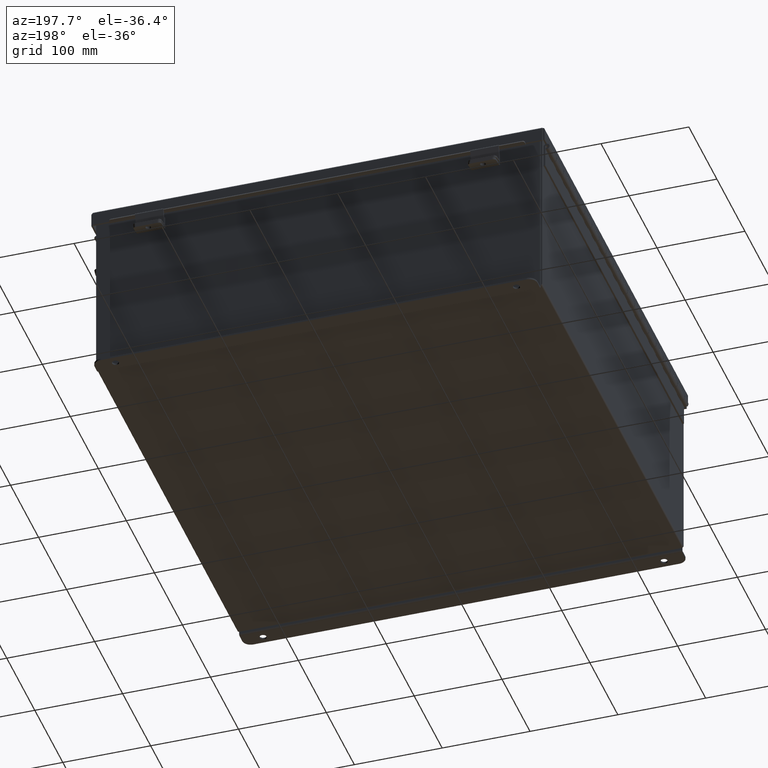
[diagram: clean part render]
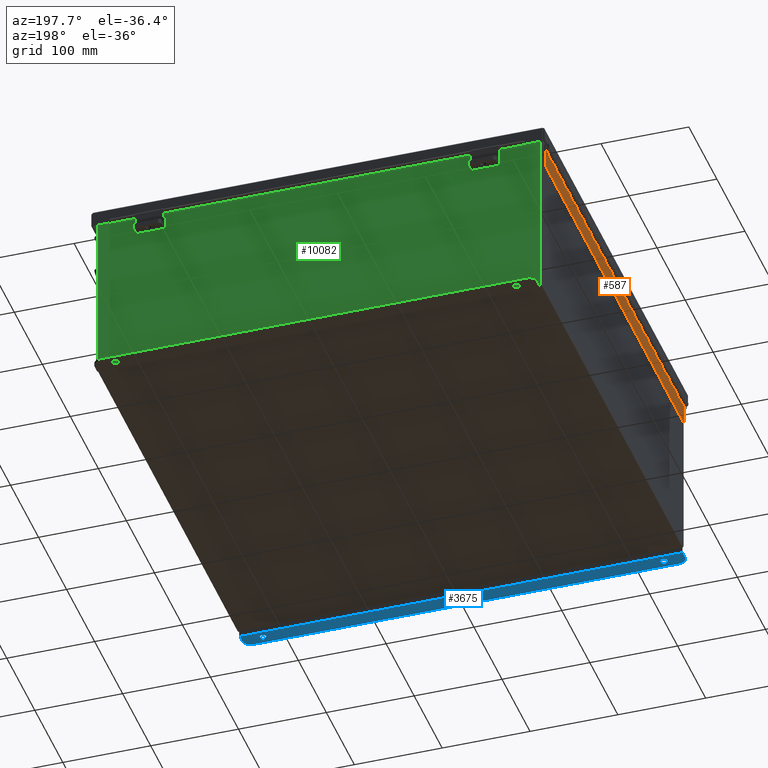
[diagram: same view with three faces highlighted in distinct colors, each labeled with its STEP entity id]
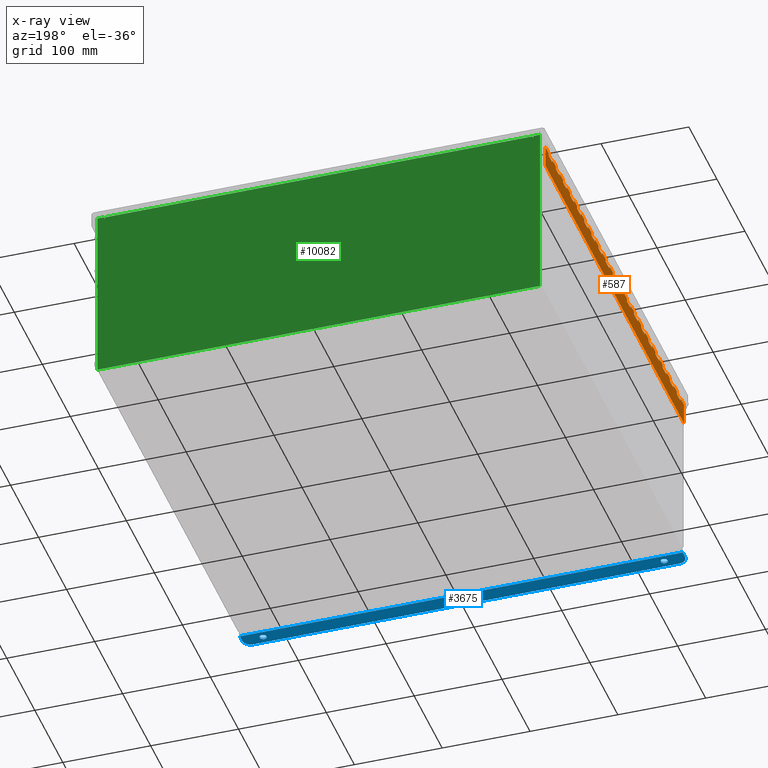
[diagram: x-ray of the same camera — body ghosted, the three highlighted faces saturated]
A machine part, auxiliary view with three faces highlighted in distinct colors.
The next image is the same camera in x-ray (body ghosted, the three faces saturated) — at least one of them is partly hidden behind the body in this view.
Their STEP definitions:

[orange] entity #587 — the highlighted planar face has unit normal (1, -0, 0).
#3 = EDGE_CURVE ( 'NONE', #3331, #10303, #17368, .T. ) ;
#82 = ORIENTED_EDGE ( 'NONE', *, *, #1713, .F. ) ;
#86 = ORIENTED_EDGE ( 'NONE', *, *, #21931, .T. ) ;
#95 = DIRECTION ( 'NONE',  ( 0.0000000000000000000, 1.000000000000000000, 0.0000000000000000000 ) ) ;
#132 = VECTOR ( 'NONE', #17175, 39.37007874015748100 ) ;
#143 = ORIENTED_EDGE ( 'NONE', *, *, #8330, .F. ) ;
#150 = CARTESIAN_POINT ( 'NONE',  ( 0.1365000000000000100, 0.0000000000000000000, -1.707404996040164500E-017 ) ) ;
#183 = DIRECTION ( 'NONE',  ( -1.000000000000000000, 8.005415366049124900E-015, 0.0000000000000000000 ) ) ;
#218 = CARTESIAN_POINT ( 'NONE',  ( 0.1365000000000000100, 18.00000000000000000, -1.707404996040164500E-017 ) ) ;
#243 = VERTEX_POINT ( 'NONE', #17895 ) ;
#279 = LINE ( 'NONE', #507, #18203 ) ;
#286 = ORIENTED_EDGE ( 'NONE', *, *, #19521, .F. ) ;
#398 = EDGE_CURVE ( 'NONE', #16495, #3331, #19500, .T. ) ;
#406 = VERTEX_POINT ( 'NONE', #896 ) ;
#474 = LINE ( 'NONE', #14667, #5112 ) ;
#507 = CARTESIAN_POINT ( 'NONE',  ( 1.521028919549333600E-013, 11.99999999999999800, 0.0000000000000000000 ) ) ;
#515 = VECTOR ( 'NONE', #15664, 39.37007874015748100 ) ;
#517 = ORIENTED_EDGE ( 'NONE', *, *, #10842, .T. ) ;
#522 = VECTOR ( 'NONE', #11803, 39.37007874015748100 ) ;
#531 = LINE ( 'NONE', #2847, #5169 ) ;
#587 = ADVANCED_FACE ( 'NONE', ( #12707 ), #11378, .F. ) ;
#596 = ORIENTED_EDGE ( 'NONE', *, *, #17024, .T. ) ;
#619 = VERTEX_POINT ( 'NONE', #8881 ) ;
#623 = CARTESIAN_POINT ( 'NONE',  ( 0.1365000000000000100, 7.500000000000000000, -1.707404996040164500E-017 ) ) ;
#659 = DIRECTION ( 'NONE',  ( 0.0000000000000000000, 1.000000000000000000, 0.0000000000000000000 ) ) ;
#663 = EDGE_CURVE ( 'NONE', #19815, #20067, #20828, .T. ) ;
#692 = EDGE_CURVE ( 'NONE', #619, #1762, #1853, .T. ) ;
#700 = CARTESIAN_POINT ( 'NONE',  ( 0.2730000000000000200, 7.500000000000000000, 0.0000000000000000000 ) ) ;
#732 = VECTOR ( 'NONE', #4296, 39.37007874015748100 ) ;
#763 = CARTESIAN_POINT ( 'NONE',  ( 1.136500000000000100, 0.0000000000000000000, 0.0000000000000000000 ) ) ;
#810 = VERTEX_POINT ( 'NONE', #15096 ) ;
#857 = DIRECTION ( 'NONE',  ( 0.0000000000000000000, 1.000000000000000000, 0.0000000000000000000 ) ) ;
#887 = EDGE_CURVE ( 'NONE', #16894, #14438, #15964, .T. ) ;
#896 = CARTESIAN_POINT ( 'NONE',  ( 0.1365000000000000100, 10.00000000000000000, -1.707404996040164500E-017 ) ) ;
#901 = VERTEX_POINT ( 'NONE', #218 ) ;
#908 = ORIENTED_EDGE ( 'NONE', *, *, #18367, .F. ) ;
#953 = LINE ( 'NONE', #2384, #6153 ) ;
#984 = ORIENTED_EDGE ( 'NONE', *, *, #16559, .T. ) ;
#1045 = LINE ( 'NONE', #6058, #9733 ) ;
#1064 = LINE ( 'NONE', #13553, #522 ) ;
#1089 = ORIENTED_EDGE ( 'NONE', *, *, #3, .F. ) ;
#1169 = VERTEX_POINT ( 'NONE', #6711 ) ;
#1230 = ORIENTED_EDGE ( 'NONE', *, *, #21354, .F. ) ;
#1251 = VECTOR ( 'NONE', #12525, 39.37007874015748100 ) ;
#1253 = LINE ( 'NONE', #13952, #5350 ) ;
#1266 = EDGE_CURVE ( 'NONE', #11574, #11019, #13261, .T. ) ;
#1312 = CARTESIAN_POINT ( 'NONE',  ( 1.136499999999999800, 19.50000000000000000, 0.0000000000000000000 ) ) ;
#1347 = CARTESIAN_POINT ( 'NONE',  ( 0.2730000000000000200, 8.999999999999996400, 0.0000000000000000000 ) ) ;
#1356 = DIRECTION ( 'NONE',  ( 0.0000000000000000000, 1.000000000000000000, 0.0000000000000000000 ) ) ;
#1359 = CARTESIAN_POINT ( 'NONE',  ( 1.521028919549333600E-013, 16.00000000000000000, 0.0000000000000000000 ) ) ;
#1388 = CARTESIAN_POINT ( 'NONE',  ( 0.1365000000000000100, 11.00000000000000000, -1.707404996040164500E-017 ) ) ;
#1472 = LINE ( 'NONE', #2162, #1251 ) ;
#1491 = ORIENTED_EDGE ( 'NONE', *, *, #11492, .F. ) ;
#1545 = CARTESIAN_POINT ( 'NONE',  ( 0.1365000000000000100, 10.50000000000000000, -1.707404996040164500E-017 ) ) ;
#1546 = ORIENTED_EDGE ( 'NONE', *, *, #8820, .F. ) ;
#1555 = CARTESIAN_POINT ( 'NONE',  ( 0.1365000000000000100, 0.0000000000000000000, -1.707404996040164500E-017 ) ) ;
#1713 = EDGE_CURVE ( 'NONE', #20901, #20762, #9727, .T. ) ;
#1748 = VERTEX_POINT ( 'NONE', #7322 ) ;
#1762 = VERTEX_POINT ( 'NONE', #16447 ) ;
#1823 = ORIENTED_EDGE ( 'NONE', *, *, #18088, .F. ) ;
#1833 = DIRECTION ( 'NONE',  ( -1.000000000000000000, 8.005415366049124900E-015, 0.0000000000000000000 ) ) ;
#1853 = LINE ( 'NONE', #17643, #5968 ) ;
#1861 = VECTOR ( 'NONE', #17272, 39.37007874015748100 ) ;
#1878 = LINE ( 'NONE', #6821, #19787 ) ;
#1933 = VERTEX_POINT ( 'NONE', #9477 ) ;
#2005 = CARTESIAN_POINT ( 'NONE',  ( 0.2730000000000000200, 15.50000000000000000, 0.0000000000000000000 ) ) ;
#2046 = CARTESIAN_POINT ( 'NONE',  ( 0.2730000000000000200, 5.999999999999997300, 0.0000000000000000000 ) ) ;
#2053 = DIRECTION ( 'NONE',  ( -1.000000000000000000, 0.0000000000000000000, 0.0000000000000000000 ) ) ;
#2063 = CARTESIAN_POINT ( 'NONE',  ( 0.2730000000000000200, 18.99999999999999600, 0.0000000000000000000 ) ) ;
#2092 = CARTESIAN_POINT ( 'NONE',  ( 0.2730000000000000200, 4.999999999999998200, 0.0000000000000000000 ) ) ;
#2120 = CARTESIAN_POINT ( 'NONE',  ( 0.2730000000000000200, -10.00000000000000000, 0.0000000000000000000 ) ) ;
#2136 = VECTOR ( 'NONE', #6690, 39.37007874015748100 ) ;
#2162 = CARTESIAN_POINT ( 'NONE',  ( 0.0000000000000000000, 10.50000000000000000, 0.0000000000000000000 ) ) ;
#2175 = VERTEX_POINT ( 'NONE', #15529 ) ;
#2207 = AXIS2_PLACEMENT_3D ( 'NONE', #1312, #12459, #11672 ) ;
#2208 = CARTESIAN_POINT ( 'NONE',  ( 0.2730000000000000200, 6.500000000000000900, 0.0000000000000000000 ) ) ;
#2221 = VERTEX_POINT ( 'NONE', #19020 ) ;
#2229 = DIRECTION ( 'NONE',  ( -1.000000000000000000, -0.0000000000000000000, -0.0000000000000000000 ) ) ;
#2250 = DIRECTION ( 'NONE',  ( -1.000000000000000000, 8.005415366049124900E-015, 0.0000000000000000000 ) ) ;
#2255 = CARTESIAN_POINT ( 'NONE',  ( 0.0000000000000000000, 0.4999999999999996100, 0.0000000000000000000 ) ) ;
#2296 = VERTEX_POINT ( 'NONE', #7316 ) ;
#2323 = VECTOR ( 'NONE', #3843, 39.37007874015748100 ) ;
#2382 = CARTESIAN_POINT ( 'NONE',  ( 0.1365000000000000100, 5.999999999999998200, -1.707404996040164500E-017 ) ) ;
#2384 = CARTESIAN_POINT ( 'NONE',  ( 1.521028919549333600E-013, 8.000000000000000000, 0.0000000000000000000 ) ) ;
#2492 = CARTESIAN_POINT ( 'NONE',  ( 1.521028919549333600E-013, 3.999999999999998700, 0.0000000000000000000 ) ) ;
#2510 = ORIENTED_EDGE ( 'NONE', *, *, #18063, .F. ) ;
#2518 = ORIENTED_EDGE ( 'NONE', *, *, #9601, .F. ) ;
#2524 = EDGE_CURVE ( 'NONE', #4907, #11248, #7279, .T. ) ;
#2586 = VERTEX_POINT ( 'NONE', #18843 ) ;
#2643 = CARTESIAN_POINT ( 'NONE',  ( 0.1365000000000000100, 0.0000000000000000000, -1.707404996040164500E-017 ) ) ;
#2689 = DIRECTION ( 'NONE',  ( 0.0000000000000000000, 1.000000000000000000, 0.0000000000000000000 ) ) ;
#2737 = DIRECTION ( 'NONE',  ( 1.000000000000000000, 0.0000000000000000000, 0.0000000000000000000 ) ) ;
#2793 = EDGE_CURVE ( 'NONE', #10400, #21511, #1253, .T. ) ;
#2817 = LINE ( 'NONE', #9399, #11488 ) ;
#2839 = EDGE_CURVE ( 'NONE', #17767, #21975, #13460, .T. ) ;
#2845 = VECTOR ( 'NONE', #10467, 39.37007874015748100 ) ;
#2847 = CARTESIAN_POINT ( 'NONE',  ( 0.2730000000000000200, -2.999999999999999600, 0.0000000000000000000 ) ) ;
#2877 = EDGE_CURVE ( 'NONE', #6010, #13345, #8320, .T. ) ;
#2894 = CARTESIAN_POINT ( 'NONE',  ( 0.1365000000000000100, 0.0000000000000000000, -1.707404996040164500E-017 ) ) ;
#2909 = LINE ( 'NONE', #11934, #3142 ) ;
#2910 = CARTESIAN_POINT ( 'NONE',  ( 0.2730000000000000200, 12.50000000000000000, 0.0000000000000000000 ) ) ;
#2966 = CARTESIAN_POINT ( 'NONE',  ( 1.521028919549333600E-013, 5.000000000000000000, 0.0000000000000000000 ) ) ;
#3041 = VERTEX_POINT ( 'NONE', #5329 ) ;
#3049 = CARTESIAN_POINT ( 'NONE',  ( 0.2730000000000000200, 10.99999999999999800, 0.0000000000000000000 ) ) ;
#3142 = VECTOR ( 'NONE', #22292, 39.37007874015748100 ) ;
#3167 = EDGE_CURVE ( 'NONE', #13046, #4124, #21292, .T. ) ;
#3196 = EDGE_CURVE ( 'NONE', #2586, #19124, #12070, .T. ) ;
#3299 = VECTOR ( 'NONE', #18716, 39.37007874015748100 ) ;
#3331 = VERTEX_POINT ( 'NONE', #8279 ) ;
#3409 = VECTOR ( 'NONE', #10387, 39.37007874015748100 ) ;
#3457 = DIRECTION ( 'NONE',  ( 0.0000000000000000000, 1.000000000000000000, 0.0000000000000000000 ) ) ;
#3477 = CARTESIAN_POINT ( 'NONE',  ( 0.1365000000000000100, 0.4999999999999996100, -1.707404996040164500E-017 ) ) ;
#3480 = CARTESIAN_POINT ( 'NONE',  ( 1.521028919549333600E-013, 14.00000000000000000, 0.0000000000000000000 ) ) ;
#3496 = EDGE_CURVE ( 'NONE', #2221, #7408, #20444, .T. ) ;
#3517 = CARTESIAN_POINT ( 'NONE',  ( 0.2730000000000000200, -13.00000000000000000, 0.0000000000000000000 ) ) ;
#3578 = DIRECTION ( 'NONE',  ( -1.000000000000000000, 0.0000000000000000000, 0.0000000000000000000 ) ) ;
#3590 = EDGE_CURVE ( 'NONE', #5343, #20901, #3941, .T. ) ;
#3652 = DIRECTION ( 'NONE',  ( -1.000000000000000000, 8.005415366049124900E-015, 0.0000000000000000000 ) ) ;
#3659 = ORIENTED_EDGE ( 'NONE', *, *, #18764, .F. ) ;
#3694 = LINE ( 'NONE', #19464, #12356 ) ;
#3704 = VECTOR ( 'NONE', #7685, 39.37007874015748100 ) ;
#3726 = CARTESIAN_POINT ( 'NONE',  ( 0.1365000000000000100, 3.499999999999999100, -1.707404996040164500E-017 ) ) ;
#3732 = CARTESIAN_POINT ( 'NONE',  ( 0.0000000000000000000, 17.50000000000000000, 0.0000000000000000000 ) ) ;
#3736 = CARTESIAN_POINT ( 'NONE',  ( 0.2730000000000000200, 11.50000000000000200, 0.0000000000000000000 ) ) ;
#3810 = VERTEX_POINT ( 'NONE', #1347 ) ;
#3843 = DIRECTION ( 'NONE',  ( -1.000000000000000000, 0.0000000000000000000, 0.0000000000000000000 ) ) ;
#3880 = LINE ( 'NONE', #4843, #17165 ) ;
#3882 = ORIENTED_EDGE ( 'NONE', *, *, #17755, .F. ) ;
#3885 = VECTOR ( 'NONE', #12531, 39.37007874015748100 ) ;
#3941 = LINE ( 'NONE', #2966, #2845 ) ;
#4027 = DIRECTION ( 'NONE',  ( 0.0000000000000000000, 1.000000000000000000, 0.0000000000000000000 ) ) ;
#4091 = DIRECTION ( 'NONE',  ( 0.0000000000000000000, 1.000000000000000000, 0.0000000000000000000 ) ) ;
#4116 = DIRECTION ( 'NONE',  ( 0.0000000000000000000, 1.000000000000000000, 0.0000000000000000000 ) ) ;
#4124 = VERTEX_POINT ( 'NONE', #8162 ) ;
#4194 = CARTESIAN_POINT ( 'NONE',  ( 0.1365000000000000100, 0.0000000000000000000, -1.707404996040164500E-017 ) ) ;
#4240 = LINE ( 'NONE', #21187, #21562 ) ;
#4268 = VECTOR ( 'NONE', #857, 39.37007874015748100 ) ;
#4279 = DIRECTION ( 'NONE',  ( -7.004738445292983000E-018, 1.000000000000000000, 0.0000000000000000000 ) ) ;
#4296 = DIRECTION ( 'NONE',  ( 0.0000000000000000000, 1.000000000000000000, 0.0000000000000000000 ) ) ;
#4407 = VERTEX_POINT ( 'NONE', #10841 ) ;
#4438 = VERTEX_POINT ( 'NONE', #763 ) ;
#4493 = LINE ( 'NONE', #20057, #13163 ) ;
#4566 = EDGE_CURVE ( 'NONE', #13015, #13977, #15544, .T. ) ;
#4580 = CARTESIAN_POINT ( 'NONE',  ( 0.1365000000000000100, 0.0000000000000000000, -1.707404996040164500E-017 ) ) ;
#4588 = LINE ( 'NONE', #13551, #17340 ) ;
#4645 = DIRECTION ( 'NONE',  ( 0.0000000000000000000, 1.000000000000000000, 0.0000000000000000000 ) ) ;
#4731 = DIRECTION ( 'NONE',  ( 0.0000000000000000000, 1.000000000000000000, 0.0000000000000000000 ) ) ;
#4767 = VERTEX_POINT ( 'NONE', #2046 ) ;
#4799 = CARTESIAN_POINT ( 'NONE',  ( 0.1365000000000000100, 3.999999999999998200, -1.707404996040164500E-017 ) ) ;
#4843 = CARTESIAN_POINT ( 'NONE',  ( 0.2730000000000000200, -7.000000000000000000, 0.0000000000000000000 ) ) ;
#4853 = VECTOR ( 'NONE', #19207, 39.37007874015748100 ) ;
#4907 = VERTEX_POINT ( 'NONE', #14078 ) ;
#4982 = CARTESIAN_POINT ( 'NONE',  ( 0.2730000000000000200, -5.000000000000000000, 0.0000000000000000000 ) ) ;
#4983 = ORIENTED_EDGE ( 'NONE', *, *, #8149, .F. ) ;
#5112 = VECTOR ( 'NONE', #4279, 39.37007874015748100 ) ;
#5130 = VECTOR ( 'NONE', #7904, 39.37007874015748100 ) ;
#5169 = VECTOR ( 'NONE', #9756, 39.37007874015748100 ) ;
#5179 = VERTEX_POINT ( 'NONE', #10289 ) ;
#5215 = ORIENTED_EDGE ( 'NONE', *, *, #2524, .F. ) ;
#5254 = VERTEX_POINT ( 'NONE', #8479 ) ;
#5263 = CARTESIAN_POINT ( 'NONE',  ( 1.521028919549333600E-013, 10.00000000000000000, 0.0000000000000000000 ) ) ;
#5314 = DIRECTION ( 'NONE',  ( 0.0000000000000000000, 1.000000000000000000, 0.0000000000000000000 ) ) ;
#5325 = ORIENTED_EDGE ( 'NONE', *, *, #21952, .T. ) ;
#5329 = CARTESIAN_POINT ( 'NONE',  ( 0.1364999999999999000, 0.0000000000000000000, 0.0000000000000000000 ) ) ;
#5342 = VERTEX_POINT ( 'NONE', #2005 ) ;
#5343 = VERTEX_POINT ( 'NONE', #2092 ) ;
#5344 = VECTOR ( 'NONE', #5453, 39.37007874015748100 ) ;
#5348 = DIRECTION ( 'NONE',  ( 0.0000000000000000000, 1.000000000000000000, 0.0000000000000000000 ) ) ;
#5350 = VECTOR ( 'NONE', #14797, 39.37007874015748100 ) ;
#5383 = CARTESIAN_POINT ( 'NONE',  ( 0.1365000000000000100, 0.0000000000000000000, -1.707404996040164500E-017 ) ) ;
#5448 = CARTESIAN_POINT ( 'NONE',  ( 0.1365000000000000100, 11.50000000000000200, -1.707404996040164500E-017 ) ) ;
#5453 = DIRECTION ( 'NONE',  ( -1.000000000000000000, 0.0000000000000000000, 0.0000000000000000000 ) ) ;
#5522 = EDGE_CURVE ( 'NONE', #11526, #810, #3880, .T. ) ;
#5595 = CARTESIAN_POINT ( 'NONE',  ( 0.1365000000000000100, 14.49999999999999800, -1.707404996040164500E-017 ) ) ;
#5596 = LINE ( 'NONE', #8901, #10718 ) ;
#5645 = LINE ( 'NONE', #2120, #9666 ) ;
#5674 = VECTOR ( 'NONE', #4116, 39.37007874015748100 ) ;
#5715 = CARTESIAN_POINT ( 'NONE',  ( 0.1365000000000000100, 9.500000000000000000, -1.707404996040164500E-017 ) ) ;
#5769 = VERTEX_POINT ( 'NONE', #9395 ) ;
#5771 = DIRECTION ( 'NONE',  ( 0.0000000000000000000, 1.000000000000000000, 0.0000000000000000000 ) ) ;
#5905 = LINE ( 'NONE', #17713, #15108 ) ;
#5935 = LINE ( 'NONE', #14678, #732 ) ;
#5968 = VECTOR ( 'NONE', #20968, 39.37007874015748100 ) ;
#6005 = VECTOR ( 'NONE', #2737, 39.37007874015748100 ) ;
#6010 = VERTEX_POINT ( 'NONE', #20327 ) ;
#6029 = ORIENTED_EDGE ( 'NONE', *, *, #3496, .F. ) ;
#6035 = CARTESIAN_POINT ( 'NONE',  ( 0.2730000000000000200, 0.0000000000000000000, 0.0000000000000000000 ) ) ;
#6058 = CARTESIAN_POINT ( 'NONE',  ( 0.1365000000000000100, 0.0000000000000000000, -1.707404996040164500E-017 ) ) ;
#6061 = CARTESIAN_POINT ( 'NONE',  ( 0.1365000000000000100, 7.999999999999999100, -1.707404996040164500E-017 ) ) ;
#6124 = VERTEX_POINT ( 'NONE', #700 ) ;
#6153 = VECTOR ( 'NONE', #14520, 39.37007874015748100 ) ;
#6245 = EDGE_CURVE ( 'NONE', #13015, #16857, #12781, .T. ) ;
#6268 = CARTESIAN_POINT ( 'NONE',  ( 1.521028919549333600E-013, 19.00000000000000000, 0.0000000000000000000 ) ) ;
#6402 = CARTESIAN_POINT ( 'NONE',  ( 0.1365000000000000100, 0.0000000000000000000, -1.707404996040164500E-017 ) ) ;
#6415 = LINE ( 'NONE', #16851, #14531 ) ;
#6457 = VECTOR ( 'NONE', #1356, 39.37007874015748100 ) ;
#6514 = EDGE_CURVE ( 'NONE', #243, #5254, #7927, .T. ) ;
#6592 = DIRECTION ( 'NONE',  ( 0.0000000000000000000, 1.000000000000000000, 0.0000000000000000000 ) ) ;
#6606 = CARTESIAN_POINT ( 'NONE',  ( 0.2730000000000000200, 13.99999999999999600, 0.0000000000000000000 ) ) ;
#6616 = CARTESIAN_POINT ( 'NONE',  ( 0.0000000000000000000, 1.500000000000000900, 0.0000000000000000000 ) ) ;
#6690 = DIRECTION ( 'NONE',  ( -1.000000000000000000, 8.005415366049124900E-015, 0.0000000000000000000 ) ) ;
#6711 = CARTESIAN_POINT ( 'NONE',  ( 0.2730000000000000200, 7.999999999999997300, 0.0000000000000000000 ) ) ;
#6716 = CARTESIAN_POINT ( 'NONE',  ( 0.0000000000000000000, 15.50000000000000000, 0.0000000000000000000 ) ) ;
#6734 = VERTEX_POINT ( 'NONE', #3477 ) ;
#6758 = LINE ( 'NONE', #7570, #10801 ) ;
#6762 = CARTESIAN_POINT ( 'NONE',  ( 0.2730000000000000200, -8.000000000000000000, 0.0000000000000000000 ) ) ;
#6806 = CARTESIAN_POINT ( 'NONE',  ( 0.2730000000000000200, 3.499999999999999100, 0.0000000000000000000 ) ) ;
#6808 = VECTOR ( 'NONE', #16999, 39.37007874015748100 ) ;
#6818 = DIRECTION ( 'NONE',  ( -1.000000000000000000, 8.005415366049124900E-015, 0.0000000000000000000 ) ) ;
#6821 = CARTESIAN_POINT ( 'NONE',  ( 0.0000000000000000000, 7.500000000000000000, 0.0000000000000000000 ) ) ;
#6900 = ORIENTED_EDGE ( 'NONE', *, *, #3590, .F. ) ;
#6933 = ORIENTED_EDGE ( 'NONE', *, *, #18035, .F. ) ;
#6958 = CARTESIAN_POINT ( 'NONE',  ( 0.2730000000000000200, -9.000000000000000000, 0.0000000000000000000 ) ) ;
#7007 = DIRECTION ( 'NONE',  ( -1.000000000000000000, 8.005415366049124900E-015, 0.0000000000000000000 ) ) ;
#7011 = ORIENTED_EDGE ( 'NONE', *, *, #12928, .F. ) ;
#7018 = CARTESIAN_POINT ( 'NONE',  ( 0.0000000000000000000, 5.500000000000000000, 0.0000000000000000000 ) ) ;
#7112 = ORIENTED_EDGE ( 'NONE', *, *, #8981, .T. ) ;
#7279 = LINE ( 'NONE', #6762, #11849 ) ;
#7316 = CARTESIAN_POINT ( 'NONE',  ( 0.2730000000000000200, 8.500000000000000000, 0.0000000000000000000 ) ) ;
#7322 = CARTESIAN_POINT ( 'NONE',  ( 0.2730000000000000200, 15.99999999999999800, 0.0000000000000000000 ) ) ;
#7336 = CARTESIAN_POINT ( 'NONE',  ( 0.2730000000000000200, 9.999999999999996400, 0.0000000000000000000 ) ) ;
#7337 = LINE ( 'NONE', #19674, #20541 ) ;
#7353 = DIRECTION ( 'NONE',  ( -1.000000000000000000, 0.0000000000000000000, 0.0000000000000000000 ) ) ;
#7359 = CARTESIAN_POINT ( 'NONE',  ( 0.1365000000000000100, 16.50000000000000000, -1.707404996040164500E-017 ) ) ;
#7408 = VERTEX_POINT ( 'NONE', #10478 ) ;
#7507 = VECTOR ( 'NONE', #1833, 39.37007874015748100 ) ;
#7570 = CARTESIAN_POINT ( 'NONE',  ( 1.521028919549333600E-013, 18.00000000000000000, 0.0000000000000000000 ) ) ;
#7584 = LINE ( 'NONE', #4982, #20815 ) ;
#7628 = CARTESIAN_POINT ( 'NONE',  ( 0.2730000000000000200, 2.999999999999997300, 0.0000000000000000000 ) ) ;
#7638 = VERTEX_POINT ( 'NONE', #1388 ) ;
#7685 = DIRECTION ( 'NONE',  ( 0.0000000000000000000, 1.000000000000000000, 0.0000000000000000000 ) ) ;
#7739 = EDGE_CURVE ( 'NONE', #2296, #20067, #1064, .T. ) ;
#7868 = VECTOR ( 'NONE', #11213, 39.37007874015748100 ) ;
#7904 = DIRECTION ( 'NONE',  ( 0.0000000000000000000, 1.000000000000000000, 0.0000000000000000000 ) ) ;
#7927 = LINE ( 'NONE', #17439, #16582 ) ;
#7958 = DIRECTION ( 'NONE',  ( -1.000000000000000000, 8.005415366049124900E-015, 0.0000000000000000000 ) ) ;
#7969 = VECTOR ( 'NONE', #14380, 39.37007874015748100 ) ;
#7994 = DIRECTION ( 'NONE',  ( -1.000000000000000000, 8.005415366049124900E-015, 0.0000000000000000000 ) ) ;
#8065 = EDGE_CURVE ( 'NONE', #19290, #8916, #7337, .T. ) ;
#8149 = EDGE_CURVE ( 'NONE', #5254, #13563, #1045, .T. ) ;
#8162 = CARTESIAN_POINT ( 'NONE',  ( 0.1365000000000000100, 4.500000000000000900, -1.707404996040164500E-017 ) ) ;
#8189 = CARTESIAN_POINT ( 'NONE',  ( 0.1365000000000000100, 18.50000000000000000, -1.707404996040164500E-017 ) ) ;
#8196 = VECTOR ( 'NONE', #14139, 39.37007874015748100 ) ;
#8228 = CARTESIAN_POINT ( 'NONE',  ( 0.2730000000000000200, 1.500000000000000900, 0.0000000000000000000 ) ) ;
#8269 = CARTESIAN_POINT ( 'NONE',  ( 0.2730000000000000200, -14.00000000000000000, 0.0000000000000000000 ) ) ;
#8279 = CARTESIAN_POINT ( 'NONE',  ( 0.1365000000000000100, 15.00000000000000000, -1.707404996040164500E-017 ) ) ;
#8291 = VECTOR ( 'NONE', #11912, 39.37007874015748100 ) ;
#8320 = LINE ( 'NONE', #22194, #3704 ) ;
#8330 = EDGE_CURVE ( 'NONE', #4767, #17767, #16231, .T. ) ;
#8340 = ORIENTED_EDGE ( 'NONE', *, *, #13921, .F. ) ;
#8347 = VECTOR ( 'NONE', #2689, 39.37007874015748100 ) ;
#8446 = DIRECTION ( 'NONE',  ( -1.000000000000000000, 0.0000000000000000000, 0.0000000000000000000 ) ) ;
#8479 = CARTESIAN_POINT ( 'NONE',  ( 0.1365000000000000100, 13.00000000000000000, -1.707404996040164500E-017 ) ) ;
#8588 = VERTEX_POINT ( 'NONE', #9136 ) ;
#8634 = ORIENTED_EDGE ( 'NONE', *, *, #18694, .T. ) ;
#8671 = DIRECTION ( 'NONE',  ( 0.0000000000000000000, 1.000000000000000000, 0.0000000000000000000 ) ) ;
#8681 = DIRECTION ( 'NONE',  ( -1.000000000000000000, 0.0000000000000000000, 0.0000000000000000000 ) ) ;
#8716 = CARTESIAN_POINT ( 'NONE',  ( 0.1365000000000000100, 0.0000000000000000000, -1.707404996040164500E-017 ) ) ;
#8728 = VECTOR ( 'NONE', #5314, 39.37007874015748100 ) ;
#8809 = DIRECTION ( 'NONE',  ( -1.000000000000000000, 8.005415366049124900E-015, 0.0000000000000000000 ) ) ;
#8820 = EDGE_CURVE ( 'NONE', #13977, #11535, #17869, .T. ) ;
#8836 = CARTESIAN_POINT ( 'NONE',  ( 1.521028919549333600E-013, 17.00000000000000000, 0.0000000000000000000 ) ) ;
#8864 = VECTOR ( 'NONE', #4091, 39.37007874015748100 ) ;
#8881 = CARTESIAN_POINT ( 'NONE',  ( 0.2730000000000000200, 2.500000000000000000, 0.0000000000000000000 ) ) ;
#8893 = LINE ( 'NONE', #9517, #4268 ) ;
#8895 = DIRECTION ( 'NONE',  ( 0.0000000000000000000, 1.000000000000000000, 0.0000000000000000000 ) ) ;
#8901 = CARTESIAN_POINT ( 'NONE',  ( 1.521028919549333600E-013, 7.000000000000000900, 0.0000000000000000000 ) ) ;
#8904 = LINE ( 'NONE', #6716, #22151 ) ;
#8909 = VECTOR ( 'NONE', #2229, 39.37007874015748100 ) ;
#8916 = VERTEX_POINT ( 'NONE', #9955 ) ;
#8981 = EDGE_CURVE ( 'NONE', #5342, #10303, #8904, .T. ) ;
#9073 = EDGE_CURVE ( 'NONE', #18047, #8588, #17029, .T. ) ;
#9136 = CARTESIAN_POINT ( 'NONE',  ( 0.1365000000000000100, 2.000000000000000000, -1.707404996040164500E-017 ) ) ;
#9145 = CARTESIAN_POINT ( 'NONE',  ( 0.1365000000000000100, 6.500000000000000900, -1.707404996040164500E-017 ) ) ;
#9207 = DIRECTION ( 'NONE',  ( -1.000000000000000000, 8.005415366049124900E-015, 0.0000000000000000000 ) ) ;
#9276 = LINE ( 'NONE', #8716, #8728 ) ;
#9299 = ORIENTED_EDGE ( 'NONE', *, *, #12716, .F. ) ;
#9325 = EDGE_CURVE ( 'NONE', #13046, #5343, #11039, .T. ) ;
#9395 = CARTESIAN_POINT ( 'NONE',  ( 0.2730000000000000200, 13.50000000000000000, 0.0000000000000000000 ) ) ;
#9399 = CARTESIAN_POINT ( 'NONE',  ( 0.2730000000000000200, -11.99999999999999800, 0.0000000000000000000 ) ) ;
#9477 = CARTESIAN_POINT ( 'NONE',  ( 0.2730000000000000200, 0.4999999999999996100, 0.0000000000000000000 ) ) ;
#9513 = DIRECTION ( 'NONE',  ( 0.0000000000000000000, 1.000000000000000000, 0.0000000000000000000 ) ) ;
#9517 = CARTESIAN_POINT ( 'NONE',  ( 0.2730000000000000200, -18.00000000000000000, 0.0000000000000000000 ) ) ;
#9601 = EDGE_CURVE ( 'NONE', #2296, #3810, #5645, .T. ) ;
#9630 = CARTESIAN_POINT ( 'NONE',  ( 0.1365000000000000100, 19.50000000000000000, -1.707404996040164500E-017 ) ) ;
#9666 = VECTOR ( 'NONE', #12482, 39.37007874015748100 ) ;
#9725 = VECTOR ( 'NONE', #2053, 39.37007874015748100 ) ;
#9727 = LINE ( 'NONE', #150, #5130 ) ;
#9733 = VECTOR ( 'NONE', #9513, 39.37007874015748100 ) ;
#9756 = DIRECTION ( 'NONE',  ( 0.0000000000000000000, 1.000000000000000000, 0.0000000000000000000 ) ) ;
#9761 = CARTESIAN_POINT ( 'NONE',  ( 0.1365000000000000100, 17.50000000000000000, -1.707404996040164500E-017 ) ) ;
#9768 = ORIENTED_EDGE ( 'NONE', *, *, #11231, .F. ) ;
#9843 = DIRECTION ( 'NONE',  ( 0.0000000000000000000, 1.000000000000000000, 0.0000000000000000000 ) ) ;
#9895 = VERTEX_POINT ( 'NONE', #9761 ) ;
#9955 = CARTESIAN_POINT ( 'NONE',  ( 0.2730000000000000200, 16.99999999999999600, 0.0000000000000000000 ) ) ;
#10005 = ORIENTED_EDGE ( 'NONE', *, *, #2793, .F. ) ;
#10040 = ORIENTED_EDGE ( 'NONE', *, *, #692, .T. ) ;
#10069 = EDGE_CURVE ( 'NONE', #19290, #13345, #2909, .T. ) ;
#10155 = VERTEX_POINT ( 'NONE', #12073 ) ;
#10164 = DIRECTION ( 'NONE',  ( 0.0000000000000000000, 1.000000000000000000, 0.0000000000000000000 ) ) ;
#10168 = CARTESIAN_POINT ( 'NONE',  ( 0.0000000000000000000, 6.500000000000000900, 0.0000000000000000000 ) ) ;
#10237 = ORIENTED_EDGE ( 'NONE', *, *, #4566, .F. ) ;
#10289 = CARTESIAN_POINT ( 'NONE',  ( 0.1365000000000000100, 17.00000000000000000, -1.707404996040164500E-017 ) ) ;
#10290 = VECTOR ( 'NONE', #9207, 39.37007874015748100 ) ;
#10303 = VERTEX_POINT ( 'NONE', #10730 ) ;
#10387 = DIRECTION ( 'NONE',  ( -1.000000000000000000, 0.0000000000000000000, 0.0000000000000000000 ) ) ;
#10400 = VERTEX_POINT ( 'NONE', #21396 ) ;
#10467 = DIRECTION ( 'NONE',  ( -1.000000000000000000, 8.005415366049124900E-015, 0.0000000000000000000 ) ) ;
#10478 = CARTESIAN_POINT ( 'NONE',  ( 0.1365000000000000100, 12.50000000000000000, -1.707404996040164500E-017 ) ) ;
#10557 = CARTESIAN_POINT ( 'NONE',  ( 1.521028919549333600E-013, 2.000000000000000400, 0.0000000000000000000 ) ) ;
#10564 = LINE ( 'NONE', #19073, #1861 ) ;
#10718 = VECTOR ( 'NONE', #3652, 39.37007874015748100 ) ;
#10730 = CARTESIAN_POINT ( 'NONE',  ( 0.1365000000000000100, 15.50000000000000000, -1.707404996040164500E-017 ) ) ;
#10801 = VECTOR ( 'NONE', #16172, 39.37007874015748100 ) ;
#10841 = CARTESIAN_POINT ( 'NONE',  ( 0.1365000000000000100, 8.999999999999998200, -1.707404996040164500E-017 ) ) ;
#10842 = EDGE_CURVE ( 'NONE', #18387, #18479, #13451, .T. ) ;
#10961 = ORIENTED_EDGE ( 'NONE', *, *, #9325, .F. ) ;
#11002 = EDGE_CURVE ( 'NONE', #1169, #19815, #953, .T. ) ;
#11019 = VERTEX_POINT ( 'NONE', #623 ) ;
#11039 = LINE ( 'NONE', #8269, #6457 ) ;
#11157 = VECTOR ( 'NONE', #14398, 39.37007874015748100 ) ;
#11184 = ORIENTED_EDGE ( 'NONE', *, *, #17599, .F. ) ;
#11213 = DIRECTION ( 'NONE',  ( -1.000000000000000000, 8.005415366049124900E-015, 0.0000000000000000000 ) ) ;
#11231 = EDGE_CURVE ( 'NONE', #7638, #20214, #6415, .T. ) ;
#11248 = VERTEX_POINT ( 'NONE', #3049 ) ;
#11328 = EDGE_CURVE ( 'NONE', #14122, #2586, #22092, .T. ) ;
#11342 = CARTESIAN_POINT ( 'NONE',  ( 0.2730000000000000200, -1.000000000000000000, 0.0000000000000000000 ) ) ;
#11378 = PLANE ( 'NONE',  #2207 ) ;
#11449 = LINE ( 'NONE', #17469, #15516 ) ;
#11451 = EDGE_CURVE ( 'NONE', #22313, #19124, #19922, .T. ) ;
#11488 = VECTOR ( 'NONE', #659, 39.37007874015748100 ) ;
#11492 = EDGE_CURVE ( 'NONE', #10155, #11574, #5596, .T. ) ;
#11526 = VERTEX_POINT ( 'NONE', #3736 ) ;
#11535 = VERTEX_POINT ( 'NONE', #14193 ) ;
#11574 = VERTEX_POINT ( 'NONE', #19403 ) ;
#11672 = DIRECTION ( 'NONE',  ( -1.000000000000000000, 0.0000000000000000000, -0.0000000000000000000 ) ) ;
#11803 = DIRECTION ( 'NONE',  ( -1.000000000000000000, 0.0000000000000000000, 0.0000000000000000000 ) ) ;
#11812 = ORIENTED_EDGE ( 'NONE', *, *, #663, .F. ) ;
#11830 = EDGE_CURVE ( 'NONE', #1748, #6010, #14276, .T. ) ;
#11849 = VECTOR ( 'NONE', #10164, 39.37007874015748100 ) ;
#11912 = DIRECTION ( 'NONE',  ( -1.000000000000000000, 8.005415366049124900E-015, 0.0000000000000000000 ) ) ;
#11917 = LINE ( 'NONE', #20369, #6808 ) ;
#11930 = CARTESIAN_POINT ( 'NONE',  ( 0.1365000000000000100, 8.500000000000000000, -1.707404996040164500E-017 ) ) ;
#11931 = CARTESIAN_POINT ( 'NONE',  ( 1.521028919549333600E-013, 5.999999999999999100, 0.0000000000000000000 ) ) ;
#11934 = CARTESIAN_POINT ( 'NONE',  ( 0.0000000000000000000, 16.50000000000000000, 0.0000000000000000000 ) ) ;
#11976 = EDGE_CURVE ( 'NONE', #18113, #20762, #20735, .T. ) ;
#12041 = ORIENTED_EDGE ( 'NONE', *, *, #22351, .F. ) ;
#12070 = LINE ( 'NONE', #15587, #15611 ) ;
#12073 = CARTESIAN_POINT ( 'NONE',  ( 0.2730000000000000200, 6.999999999999998200, 0.0000000000000000000 ) ) ;
#12163 = LINE ( 'NONE', #4580, #21386 ) ;
#12174 = VERTEX_POINT ( 'NONE', #16053 ) ;
#12276 = VERTEX_POINT ( 'NONE', #7336 ) ;
#12296 = VERTEX_POINT ( 'NONE', #12571 ) ;
#12308 = LINE ( 'NONE', #22402, #20415 ) ;
#12310 = VERTEX_POINT ( 'NONE', #2208 ) ;
#12322 = ORIENTED_EDGE ( 'NONE', *, *, #1266, .F. ) ;
#12356 = VECTOR ( 'NONE', #14328, 39.37007874015748100 ) ;
#12370 = ORIENTED_EDGE ( 'NONE', *, *, #6245, .T. ) ;
#12459 = DIRECTION ( 'NONE',  ( 0.0000000000000000000, 0.0000000000000000000, -1.000000000000000000 ) ) ;
#12461 = CARTESIAN_POINT ( 'NONE',  ( 0.1365000000000000100, 0.0000000000000000000, -1.707404996040164500E-017 ) ) ;
#12482 = DIRECTION ( 'NONE',  ( 0.0000000000000000000, 1.000000000000000000, 0.0000000000000000000 ) ) ;
#12525 = DIRECTION ( 'NONE',  ( -1.000000000000000000, 0.0000000000000000000, 0.0000000000000000000 ) ) ;
#12526 = VERTEX_POINT ( 'NONE', #4799 ) ;
#12531 = DIRECTION ( 'NONE',  ( 0.0000000000000000000, 1.000000000000000000, 0.0000000000000000000 ) ) ;
#12571 = CARTESIAN_POINT ( 'NONE',  ( 0.2730000000000000200, 3.999999999999996900, 0.0000000000000000000 ) ) ;
#12594 = ORIENTED_EDGE ( 'NONE', *, *, #21525, .F. ) ;
#12612 = LINE ( 'NONE', #6958, #21289 ) ;
#12628 = DIRECTION ( 'NONE',  ( 0.0000000000000000000, 1.000000000000000000, 0.0000000000000000000 ) ) ;
#12707 = FACE_OUTER_BOUND ( 'NONE', #19388, .T. ) ;
#12716 = EDGE_CURVE ( 'NONE', #3810, #4407, #12308, .T. ) ;
#12727 = VECTOR ( 'NONE', #4027, 39.37007874015748100 ) ;
#12762 = ORIENTED_EDGE ( 'NONE', *, *, #14693, .T. ) ;
#12781 = LINE ( 'NONE', #14211, #8196 ) ;
#12857 = ORIENTED_EDGE ( 'NONE', *, *, #15417, .F. ) ;
#12928 = EDGE_CURVE ( 'NONE', #12310, #10155, #2817, .T. ) ;
#12943 = VECTOR ( 'NONE', #8809, 39.37007874015748100 ) ;
#12991 = LINE ( 'NONE', #2492, #7868 ) ;
#13009 = CARTESIAN_POINT ( 'NONE',  ( 0.1365000000000000100, 1.500000000000000900, -1.707404996040164500E-017 ) ) ;
#13015 = VERTEX_POINT ( 'NONE', #19981 ) ;
#13018 = ORIENTED_EDGE ( 'NONE', *, *, #20721, .T. ) ;
#13046 = VERTEX_POINT ( 'NONE', #20063 ) ;
#13092 = LINE ( 'NONE', #16094, #7969 ) ;
#13096 = ORIENTED_EDGE ( 'NONE', *, *, #11976, .T. ) ;
#13163 = VECTOR ( 'NONE', #7958, 39.37007874015748100 ) ;
#13261 = LINE ( 'NONE', #5383, #515 ) ;
#13345 = VERTEX_POINT ( 'NONE', #7359 ) ;
#13347 = EDGE_CURVE ( 'NONE', #4407, #14689, #22294, .T. ) ;
#13405 = EDGE_CURVE ( 'NONE', #406, #20066, #13092, .T. ) ;
#13451 = LINE ( 'NONE', #15796, #5344 ) ;
#13460 = LINE ( 'NONE', #2643, #8864 ) ;
#13504 = VECTOR ( 'NONE', #183, 39.37007874015748100 ) ;
#13551 = CARTESIAN_POINT ( 'NONE',  ( 1.521028919549333600E-013, 0.9999999999999992200, 0.0000000000000000000 ) ) ;
#13553 = CARTESIAN_POINT ( 'NONE',  ( 0.0000000000000000000, 8.500000000000000000, 0.0000000000000000000 ) ) ;
#13559 = VECTOR ( 'NONE', #4645, 39.37007874015748100 ) ;
#13563 = VERTEX_POINT ( 'NONE', #14732 ) ;
#13635 = CARTESIAN_POINT ( 'NONE',  ( 0.1365000000000000100, 14.00000000000000000, -1.707404996040164500E-017 ) ) ;
#13656 = VERTEX_POINT ( 'NONE', #2910 ) ;
#13732 = CARTESIAN_POINT ( 'NONE',  ( 0.1365000000000000100, 5.500000000000000000, -1.707404996040164500E-017 ) ) ;
#13765 = DIRECTION ( 'NONE',  ( -1.000000000000000000, 0.0000000000000000000, 0.0000000000000000000 ) ) ;
#13921 = EDGE_CURVE ( 'NONE', #5179, #9895, #11449, .T. ) ;
#13952 = CARTESIAN_POINT ( 'NONE',  ( 0.1365000000000000100, 0.0000000000000000000, -1.707404996040164500E-017 ) ) ;
#13957 = CARTESIAN_POINT ( 'NONE',  ( 0.2730000000000000200, 14.99999999999999600, 0.0000000000000000000 ) ) ;
#13965 = ORIENTED_EDGE ( 'NONE', *, *, #15221, .F. ) ;
#13976 = LINE ( 'NONE', #1555, #132 ) ;
#13977 = VERTEX_POINT ( 'NONE', #2063 ) ;
#14028 = VECTOR ( 'NONE', #22270, 39.37007874015748100 ) ;
#14058 = LINE ( 'NONE', #14069, #4853 ) ;
#14069 = CARTESIAN_POINT ( 'NONE',  ( 0.1365000000000000100, 0.0000000000000000000, -1.707404996040164500E-017 ) ) ;
#14078 = CARTESIAN_POINT ( 'NONE',  ( 0.2730000000000000200, 10.50000000000000000, 0.0000000000000000000 ) ) ;
#14101 = ORIENTED_EDGE ( 'NONE', *, *, #10069, .T. ) ;
#14122 = VERTEX_POINT ( 'NONE', #7628 ) ;
#14139 = DIRECTION ( 'NONE',  ( -1.000000000000000000, 0.0000000000000000000, 0.0000000000000000000 ) ) ;
#14193 = CARTESIAN_POINT ( 'NONE',  ( 0.1365000000000000100, 19.00000000000000000, -1.707404996040164500E-017 ) ) ;
#14211 = CARTESIAN_POINT ( 'NONE',  ( 0.0000000000000000000, 18.50000000000000000, 0.0000000000000000000 ) ) ;
#14276 = LINE ( 'NONE', #1359, #18338 ) ;
#14328 = DIRECTION ( 'NONE',  ( 0.0000000000000000000, 1.000000000000000000, 0.0000000000000000000 ) ) ;
#14346 = LINE ( 'NONE', #3732, #9725 ) ;
#14372 = CARTESIAN_POINT ( 'NONE',  ( 0.0000000000000000000, 19.50000000000000000, 0.0000000000000000000 ) ) ;
#14380 = DIRECTION ( 'NONE',  ( 0.0000000000000000000, 1.000000000000000000, 0.0000000000000000000 ) ) ;
#14395 = EDGE_CURVE ( 'NONE', #22169, #21511, #16592, .T. ) ;
#14398 = DIRECTION ( 'NONE',  ( -1.000000000000000000, 0.0000000000000000000, 0.0000000000000000000 ) ) ;
#14438 = VERTEX_POINT ( 'NONE', #13635 ) ;
#14520 = DIRECTION ( 'NONE',  ( -1.000000000000000000, 8.005415366049124900E-015, 0.0000000000000000000 ) ) ;
#14531 = VECTOR ( 'NONE', #4731, 39.37007874015748100 ) ;
#14561 = EDGE_CURVE ( 'NONE', #901, #16857, #9276, .T. ) ;
#14597 = VECTOR ( 'NONE', #8681, 39.37007874015748100 ) ;
#14667 = CARTESIAN_POINT ( 'NONE',  ( 1.136500000000000100, 0.0000000000000000000, 0.0000000000000000000 ) ) ;
#14678 = CARTESIAN_POINT ( 'NONE',  ( 0.2730000000000000200, -11.00000000000000000, 0.0000000000000000000 ) ) ;
#14689 = VERTEX_POINT ( 'NONE', #5715 ) ;
#14693 = EDGE_CURVE ( 'NONE', #1933, #6734, #15227, .T. ) ;
#14732 = CARTESIAN_POINT ( 'NONE',  ( 0.1365000000000000100, 13.50000000000000000, -1.707404996040164500E-017 ) ) ;
#14753 = CARTESIAN_POINT ( 'NONE',  ( 0.2730000000000000200, -15.00000000000000000, 0.0000000000000000000 ) ) ;
#14790 = CARTESIAN_POINT ( 'NONE',  ( 1.521028919549333600E-013, 15.00000000000000000, 0.0000000000000000000 ) ) ;
#14797 = DIRECTION ( 'NONE',  ( 0.0000000000000000000, 1.000000000000000000, 0.0000000000000000000 ) ) ;
#14853 = LINE ( 'NONE', #16244, #5674 ) ;
#14858 = CARTESIAN_POINT ( 'NONE',  ( 0.2730000000000000200, 17.50000000000000000, 0.0000000000000000000 ) ) ;
#14864 = EDGE_CURVE ( 'NONE', #22169, #18047, #21690, .T. ) ;
#14884 = VECTOR ( 'NONE', #8895, 39.37007874015748100 ) ;
#15090 = ORIENTED_EDGE ( 'NONE', *, *, #2839, .F. ) ;
#15096 = CARTESIAN_POINT ( 'NONE',  ( 0.2730000000000000200, 11.99999999999999800, 0.0000000000000000000 ) ) ;
#15108 = VECTOR ( 'NONE', #7353, 39.37007874015748100 ) ;
#15221 = EDGE_CURVE ( 'NONE', #810, #2221, #279, .T. ) ;
#15227 = LINE ( 'NONE', #2255, #11157 ) ;
#15237 = DIRECTION ( 'NONE',  ( -1.000000000000000000, 8.005415366049124900E-015, 0.0000000000000000000 ) ) ;
#15291 = DIRECTION ( 'NONE',  ( -1.000000000000000000, 8.005415366049124900E-015, 0.0000000000000000000 ) ) ;
#15382 = CARTESIAN_POINT ( 'NONE',  ( 0.1365000000000000100, 0.0000000000000000000, -1.707404996040164500E-017 ) ) ;
#15417 = EDGE_CURVE ( 'NONE', #22313, #12296, #16007, .T. ) ;
#15485 = ORIENTED_EDGE ( 'NONE', *, *, #19324, .F. ) ;
#15500 = EDGE_CURVE ( 'NONE', #5342, #1748, #531, .T. ) ;
#15516 = VECTOR ( 'NONE', #5348, 39.37007874015748100 ) ;
#15529 = CARTESIAN_POINT ( 'NONE',  ( 0.2730000000000000200, 17.99999999999999600, 0.0000000000000000000 ) ) ;
#15544 = LINE ( 'NONE', #6035, #19064 ) ;
#15587 = CARTESIAN_POINT ( 'NONE',  ( 0.1365000000000000100, 0.0000000000000000000, -1.707404996040164500E-017 ) ) ;
#15611 = VECTOR ( 'NONE', #9843, 39.37007874015748100 ) ;
#15664 = DIRECTION ( 'NONE',  ( 0.0000000000000000000, 1.000000000000000000, 0.0000000000000000000 ) ) ;
#15695 = EDGE_CURVE ( 'NONE', #6124, #11019, #1878, .T. ) ;
#15714 = CARTESIAN_POINT ( 'NONE',  ( 0.2730000000000000200, 14.49999999999999800, 0.0000000000000000000 ) ) ;
#15717 = ORIENTED_EDGE ( 'NONE', *, *, #11830, .F. ) ;
#15718 = CARTESIAN_POINT ( 'NONE',  ( 0.0000000000000000000, 13.50000000000000000, 0.0000000000000000000 ) ) ;
#15729 = LINE ( 'NONE', #18369, #6005 ) ;
#15737 = VERTEX_POINT ( 'NONE', #20780 ) ;
#15792 = ORIENTED_EDGE ( 'NONE', *, *, #14561, .F. ) ;
#15796 = CARTESIAN_POINT ( 'NONE',  ( 0.0000000000000000000, 14.49999999999999800, 0.0000000000000000000 ) ) ;
#15807 = ORIENTED_EDGE ( 'NONE', *, *, #11002, .F. ) ;
#15820 = ORIENTED_EDGE ( 'NONE', *, *, #11328, .F. ) ;
#15964 = LINE ( 'NONE', #3480, #2136 ) ;
#15987 = DIRECTION ( 'NONE',  ( 0.0000000000000000000, 1.000000000000000000, 0.0000000000000000000 ) ) ;
#16007 = LINE ( 'NONE', #14753, #20065 ) ;
#16027 = ORIENTED_EDGE ( 'NONE', *, *, #2877, .F. ) ;
#16053 = CARTESIAN_POINT ( 'NONE',  ( 0.2730000000000000200, 9.500000000000000000, 0.0000000000000000000 ) ) ;
#16094 = CARTESIAN_POINT ( 'NONE',  ( 0.1365000000000000100, 0.0000000000000000000, -1.707404996040164500E-017 ) ) ;
#16131 = DIRECTION ( 'NONE',  ( 0.0000000000000000000, 1.000000000000000000, 0.0000000000000000000 ) ) ;
#16143 = ORIENTED_EDGE ( 'NONE', *, *, #17465, .F. ) ;
#16167 = EDGE_CURVE ( 'NONE', #3041, #6734, #12163, .T. ) ;
#16172 = DIRECTION ( 'NONE',  ( -1.000000000000000000, 8.005415366049124900E-015, 0.0000000000000000000 ) ) ;
#16231 = LINE ( 'NONE', #11931, #16780 ) ;
#16236 = VECTOR ( 'NONE', #12628, 39.37007874015748100 ) ;
#16244 = CARTESIAN_POINT ( 'NONE',  ( 0.2730000000000000200, -5.999999999999999100, 0.0000000000000000000 ) ) ;
#16447 = CARTESIAN_POINT ( 'NONE',  ( 0.1365000000000000100, 2.500000000000000000, -1.707404996040164500E-017 ) ) ;
#16495 = VERTEX_POINT ( 'NONE', #13957 ) ;
#16531 = EDGE_CURVE ( 'NONE', #11535, #20866, #20017, .T. ) ;
#16559 = EDGE_CURVE ( 'NONE', #16764, #9895, #14346, .T. ) ;
#16577 = DIRECTION ( 'NONE',  ( 0.0000000000000000000, 1.000000000000000000, 0.0000000000000000000 ) ) ;
#16582 = VECTOR ( 'NONE', #16942, 39.37007874015748100 ) ;
#16592 = LINE ( 'NONE', #6616, #3299 ) ;
#16699 = DIRECTION ( 'NONE',  ( 0.0000000000000000000, 1.000000000000000000, 0.0000000000000000000 ) ) ;
#16764 = VERTEX_POINT ( 'NONE', #14858 ) ;
#16780 = VECTOR ( 'NONE', #6818, 39.37007874015748100 ) ;
#16851 = CARTESIAN_POINT ( 'NONE',  ( 0.1365000000000000100, 0.0000000000000000000, -1.707404996040164500E-017 ) ) ;
#16857 = VERTEX_POINT ( 'NONE', #8189 ) ;
#16894 = VERTEX_POINT ( 'NONE', #6606 ) ;
#16942 = DIRECTION ( 'NONE',  ( -1.000000000000000000, 8.005415366049124900E-015, 0.0000000000000000000 ) ) ;
#16999 = DIRECTION ( 'NONE',  ( -1.000000000000000000, 0.0000000000000000000, 0.0000000000000000000 ) ) ;
#17024 = EDGE_CURVE ( 'NONE', #11526, #20214, #10564, .T. ) ;
#17029 = LINE ( 'NONE', #10557, #12943 ) ;
#17121 = ORIENTED_EDGE ( 'NONE', *, *, #18874, .T. ) ;
#17150 = ORIENTED_EDGE ( 'NONE', *, *, #11451, .T. ) ;
#17165 = VECTOR ( 'NONE', #3457, 39.37007874015748100 ) ;
#17175 = DIRECTION ( 'NONE',  ( 0.0000000000000000000, 1.000000000000000000, 0.0000000000000000000 ) ) ;
#17272 = DIRECTION ( 'NONE',  ( -1.000000000000000000, 0.0000000000000000000, 0.0000000000000000000 ) ) ;
#17340 = VECTOR ( 'NONE', #15291, 39.37007874015748100 ) ;
#17368 = LINE ( 'NONE', #4194, #12727 ) ;
#17419 = ORIENTED_EDGE ( 'NONE', *, *, #15500, .F. ) ;
#17439 = CARTESIAN_POINT ( 'NONE',  ( 1.521028919549333600E-013, 13.00000000000000000, 0.0000000000000000000 ) ) ;
#17464 = CARTESIAN_POINT ( 'NONE',  ( 0.0000000000000000000, 3.499999999999999100, 0.0000000000000000000 ) ) ;
#17465 = EDGE_CURVE ( 'NONE', #5769, #16894, #7584, .T. ) ;
#17469 = CARTESIAN_POINT ( 'NONE',  ( 0.1365000000000000100, 0.0000000000000000000, -1.707404996040164500E-017 ) ) ;
#17576 = LINE ( 'NONE', #11342, #8347 ) ;
#17599 = EDGE_CURVE ( 'NONE', #12526, #4124, #14058, .T. ) ;
#17643 = CARTESIAN_POINT ( 'NONE',  ( 0.0000000000000000000, 2.500000000000000000, 0.0000000000000000000 ) ) ;
#17713 = CARTESIAN_POINT ( 'NONE',  ( 0.0000000000000000000, 9.500000000000000000, 0.0000000000000000000 ) ) ;
#17719 = EDGE_CURVE ( 'NONE', #20400, #20866, #21086, .T. ) ;
#17755 = EDGE_CURVE ( 'NONE', #2175, #901, #6758, .T. ) ;
#17767 = VERTEX_POINT ( 'NONE', #2382 ) ;
#17812 = EDGE_CURVE ( 'NONE', #4438, #20400, #474, .T. ) ;
#17869 = LINE ( 'NONE', #6268, #21359 ) ;
#17895 = CARTESIAN_POINT ( 'NONE',  ( 0.2730000000000000200, 12.99999999999999800, 0.0000000000000000000 ) ) ;
#17935 = ORIENTED_EDGE ( 'NONE', *, *, #20390, .F. ) ;
#17975 = CARTESIAN_POINT ( 'NONE',  ( 0.2730000000000000200, 16.50000000000000000, 0.0000000000000000000 ) ) ;
#18000 = CARTESIAN_POINT ( 'NONE',  ( 1.136500000000000100, 19.50000000000000000, 0.0000000000000000000 ) ) ;
#18035 = EDGE_CURVE ( 'NONE', #6124, #1169, #5935, .T. ) ;
#18047 = VERTEX_POINT ( 'NONE', #18115 ) ;
#18063 = EDGE_CURVE ( 'NONE', #1933, #15737, #8893, .T. ) ;
#18088 = EDGE_CURVE ( 'NONE', #16764, #2175, #17576, .T. ) ;
#18113 = VERTEX_POINT ( 'NONE', #20045 ) ;
#18115 = CARTESIAN_POINT ( 'NONE',  ( 0.2730000000000000200, 1.999999999999998400, 0.0000000000000000000 ) ) ;
#18136 = LINE ( 'NONE', #8836, #13504 ) ;
#18193 = LINE ( 'NONE', #2894, #13559 ) ;
#18203 = VECTOR ( 'NONE', #2250, 39.37007874015748100 ) ;
#18227 = ORIENTED_EDGE ( 'NONE', *, *, #887, .F. ) ;
#18285 = ORIENTED_EDGE ( 'NONE', *, *, #13405, .F. ) ;
#18329 = CARTESIAN_POINT ( 'NONE',  ( 0.2730000000000000200, -17.00000000000000000, 0.0000000000000000000 ) ) ;
#18338 = VECTOR ( 'NONE', #15237, 39.37007874015748100 ) ;
#18357 = CARTESIAN_POINT ( 'NONE',  ( 0.1365000000000000100, 4.999999999999999100, -1.707404996040164500E-017 ) ) ;
#18367 = EDGE_CURVE ( 'NONE', #18113, #4767, #21856, .T. ) ;
#18369 = CARTESIAN_POINT ( 'NONE',  ( 0.0000000000000000000, 0.0000000000000000000, 0.0000000000000000000 ) ) ;
#18387 = VERTEX_POINT ( 'NONE', #15714 ) ;
#18478 = ORIENTED_EDGE ( 'NONE', *, *, #14395, .T. ) ;
#18479 = VERTEX_POINT ( 'NONE', #5595 ) ;
#18627 = LINE ( 'NONE', #10168, #14028 ) ;
#18652 = LINE ( 'NONE', #15718, #14597 ) ;
#18694 = EDGE_CURVE ( 'NONE', #3041, #4438, #15729, .T. ) ;
#18716 = DIRECTION ( 'NONE',  ( -1.000000000000000000, 0.0000000000000000000, 0.0000000000000000000 ) ) ;
#18764 = EDGE_CURVE ( 'NONE', #14438, #18479, #18193, .T. ) ;
#18811 = ORIENTED_EDGE ( 'NONE', *, *, #15695, .T. ) ;
#18843 = CARTESIAN_POINT ( 'NONE',  ( 0.1365000000000000100, 2.999999999999999100, -1.707404996040164500E-017 ) ) ;
#18848 = VECTOR ( 'NONE', #16131, 39.37007874015748100 ) ;
#18874 = EDGE_CURVE ( 'NONE', #13656, #7408, #11917, .T. ) ;
#18907 = ORIENTED_EDGE ( 'NONE', *, *, #21748, .F. ) ;
#19020 = CARTESIAN_POINT ( 'NONE',  ( 0.1365000000000000100, 11.99999999999999800, -1.707404996040164500E-017 ) ) ;
#19064 = VECTOR ( 'NONE', #21449, 39.37007874015748100 ) ;
#19073 = CARTESIAN_POINT ( 'NONE',  ( 0.0000000000000000000, 11.50000000000000200, 0.0000000000000000000 ) ) ;
#19094 = ORIENTED_EDGE ( 'NONE', *, *, #17719, .T. ) ;
#19124 = VERTEX_POINT ( 'NONE', #3726 ) ;
#19207 = DIRECTION ( 'NONE',  ( 0.0000000000000000000, 1.000000000000000000, 0.0000000000000000000 ) ) ;
#19290 = VERTEX_POINT ( 'NONE', #17975 ) ;
#19324 = EDGE_CURVE ( 'NONE', #12296, #12526, #12991, .T. ) ;
#19378 = ORIENTED_EDGE ( 'NONE', *, *, #17812, .T. ) ;
#19380 = VECTOR ( 'NONE', #3578, 39.37007874015748100 ) ;
#19388 = EDGE_LOOP ( 'NONE', ( #12762, #21344, #8634, #19378, #19094, #22020, #1546, #10237, #12370, #15792, #3882, #1823, #984, #8340, #19819, #22276, #14101, #16027, #15717, #17419, #7112, #1089, #20940, #1230, #517, #3659, #18227, #16143, #19440, #4983, #20595, #17935, #17121, #6029, #13965, #20612, #596, #9768, #12594, #5215, #5325, #18285, #22354, #12041, #86, #19913, #9299, #2518, #21021, #11812, #15807, #6933, #18811, #12322, #1491, #7011, #13018, #15090, #143, #908, #13096, #82, #6900, #10961, #21180, #11184, #15485, #12857, #17150, #20566, #15820, #20776, #10040, #18907, #21242, #19538, #18478, #10005, #286, #2510 ) ) ;
#19403 = CARTESIAN_POINT ( 'NONE',  ( 0.1365000000000000100, 7.000000000000000000, -1.707404996040164500E-017 ) ) ;
#19440 = ORIENTED_EDGE ( 'NONE', *, *, #20171, .T. ) ;
#19464 = CARTESIAN_POINT ( 'NONE',  ( 0.2730000000000000200, -4.000000000000000000, 0.0000000000000000000 ) ) ;
#19500 = LINE ( 'NONE', #14790, #10290 ) ;
#19521 = EDGE_CURVE ( 'NONE', #15737, #10400, #4588, .T. ) ;
#19538 = ORIENTED_EDGE ( 'NONE', *, *, #14864, .F. ) ;
#19674 = CARTESIAN_POINT ( 'NONE',  ( 0.2730000000000000200, -2.000000000000000000, 0.0000000000000000000 ) ) ;
#19787 = VECTOR ( 'NONE', #13765, 39.37007874015748100 ) ;
#19815 = VERTEX_POINT ( 'NONE', #6061 ) ;
#19819 = ORIENTED_EDGE ( 'NONE', *, *, #20197, .F. ) ;
#19895 = DIRECTION ( 'NONE',  ( 0.0000000000000000000, 1.000000000000000000, 0.0000000000000000000 ) ) ;
#19913 = ORIENTED_EDGE ( 'NONE', *, *, #13347, .F. ) ;
#19922 = LINE ( 'NONE', #17464, #19380 ) ;
#19981 = CARTESIAN_POINT ( 'NONE',  ( 0.2730000000000000200, 18.50000000000000000, 0.0000000000000000000 ) ) ;
#20017 = LINE ( 'NONE', #20978, #14884 ) ;
#20045 = CARTESIAN_POINT ( 'NONE',  ( 0.2730000000000000200, 5.500000000000000000, 0.0000000000000000000 ) ) ;
#20057 = CARTESIAN_POINT ( 'NONE',  ( 1.521028919549333600E-013, 11.00000000000000000, 0.0000000000000000000 ) ) ;
#20063 = CARTESIAN_POINT ( 'NONE',  ( 0.2730000000000000200, 4.500000000000000900, 0.0000000000000000000 ) ) ;
#20065 = VECTOR ( 'NONE', #19895, 39.37007874015748100 ) ;
#20066 = VERTEX_POINT ( 'NONE', #1545 ) ;
#20067 = VERTEX_POINT ( 'NONE', #11930 ) ;
#20171 = EDGE_CURVE ( 'NONE', #5769, #13563, #18652, .T. ) ;
#20197 = EDGE_CURVE ( 'NONE', #8916, #5179, #18136, .T. ) ;
#20214 = VERTEX_POINT ( 'NONE', #5448 ) ;
#20327 = CARTESIAN_POINT ( 'NONE',  ( 0.1365000000000000100, 16.00000000000000000, -1.707404996040164500E-017 ) ) ;
#20369 = CARTESIAN_POINT ( 'NONE',  ( 0.0000000000000000000, 12.50000000000000000, 0.0000000000000000000 ) ) ;
#20390 = EDGE_CURVE ( 'NONE', #13656, #243, #14853, .T. ) ;
#20400 = VERTEX_POINT ( 'NONE', #18000 ) ;
#20415 = VECTOR ( 'NONE', #7007, 39.37007874015748100 ) ;
#20444 = LINE ( 'NONE', #6402, #18848 ) ;
#20521 = CARTESIAN_POINT ( 'NONE',  ( 1.521028919549333600E-013, 2.999999999999999600, 0.0000000000000000000 ) ) ;
#20541 = VECTOR ( 'NONE', #5771, 39.37007874015748100 ) ;
#20566 = ORIENTED_EDGE ( 'NONE', *, *, #3196, .F. ) ;
#20581 = CARTESIAN_POINT ( 'NONE',  ( 0.0000000000000000000, 4.500000000000000900, 0.0000000000000000000 ) ) ;
#20595 = ORIENTED_EDGE ( 'NONE', *, *, #6514, .F. ) ;
#20612 = ORIENTED_EDGE ( 'NONE', *, *, #5522, .F. ) ;
#20721 = EDGE_CURVE ( 'NONE', #12310, #21975, #18627, .T. ) ;
#20735 = LINE ( 'NONE', #7018, #3409 ) ;
#20737 = LINE ( 'NONE', #5263, #7507 ) ;
#20762 = VERTEX_POINT ( 'NONE', #13732 ) ;
#20776 = ORIENTED_EDGE ( 'NONE', *, *, #21348, .F. ) ;
#20780 = CARTESIAN_POINT ( 'NONE',  ( 0.2730000000000000200, 0.9999999999999970000, 0.0000000000000000000 ) ) ;
#20815 = VECTOR ( 'NONE', #6592, 39.37007874015748100 ) ;
#20828 = LINE ( 'NONE', #15382, #16236 ) ;
#20866 = VERTEX_POINT ( 'NONE', #9630 ) ;
#20901 = VERTEX_POINT ( 'NONE', #18357 ) ;
#20940 = ORIENTED_EDGE ( 'NONE', *, *, #398, .F. ) ;
#20968 = DIRECTION ( 'NONE',  ( -1.000000000000000000, 0.0000000000000000000, 0.0000000000000000000 ) ) ;
#20978 = CARTESIAN_POINT ( 'NONE',  ( 0.1365000000000000100, 0.0000000000000000000, -1.707404996040164500E-017 ) ) ;
#21021 = ORIENTED_EDGE ( 'NONE', *, *, #7739, .T. ) ;
#21086 = LINE ( 'NONE', #14372, #8909 ) ;
#21151 = VECTOR ( 'NONE', #16577, 39.37007874015748100 ) ;
#21180 = ORIENTED_EDGE ( 'NONE', *, *, #3167, .T. ) ;
#21187 = CARTESIAN_POINT ( 'NONE',  ( 0.2730000000000000200, -16.00000000000000000, 0.0000000000000000000 ) ) ;
#21242 = ORIENTED_EDGE ( 'NONE', *, *, #9073, .F. ) ;
#21289 = VECTOR ( 'NONE', #8671, 39.37007874015748100 ) ;
#21292 = LINE ( 'NONE', #20581, #2323 ) ;
#21320 = VECTOR ( 'NONE', #95, 39.37007874015748100 ) ;
#21344 = ORIENTED_EDGE ( 'NONE', *, *, #16167, .F. ) ;
#21348 = EDGE_CURVE ( 'NONE', #619, #14122, #4240, .T. ) ;
#21354 = EDGE_CURVE ( 'NONE', #18387, #16495, #3694, .T. ) ;
#21359 = VECTOR ( 'NONE', #7994, 39.37007874015748100 ) ;
#21386 = VECTOR ( 'NONE', #16699, 39.37007874015748100 ) ;
#21396 = CARTESIAN_POINT ( 'NONE',  ( 0.1365000000000000100, 0.9999999999999986700, -1.707404996040164500E-017 ) ) ;
#21449 = DIRECTION ( 'NONE',  ( 0.0000000000000000000, 1.000000000000000000, 0.0000000000000000000 ) ) ;
#21511 = VERTEX_POINT ( 'NONE', #13009 ) ;
#21525 = EDGE_CURVE ( 'NONE', #11248, #7638, #4493, .T. ) ;
#21562 = VECTOR ( 'NONE', #15987, 39.37007874015748100 ) ;
#21690 = LINE ( 'NONE', #18329, #21151 ) ;
#21748 = EDGE_CURVE ( 'NONE', #8588, #1762, #13976, .T. ) ;
#21856 = LINE ( 'NONE', #3517, #21320 ) ;
#21931 = EDGE_CURVE ( 'NONE', #12174, #14689, #5905, .T. ) ;
#21952 = EDGE_CURVE ( 'NONE', #4907, #20066, #1472, .T. ) ;
#21975 = VERTEX_POINT ( 'NONE', #9145 ) ;
#22020 = ORIENTED_EDGE ( 'NONE', *, *, #16531, .F. ) ;
#22092 = LINE ( 'NONE', #20521, #8291 ) ;
#22151 = VECTOR ( 'NONE', #8446, 39.37007874015748100 ) ;
#22169 = VERTEX_POINT ( 'NONE', #8228 ) ;
#22194 = CARTESIAN_POINT ( 'NONE',  ( 0.1365000000000000100, 0.0000000000000000000, -1.707404996040164500E-017 ) ) ;
#22270 = DIRECTION ( 'NONE',  ( -1.000000000000000000, 0.0000000000000000000, 0.0000000000000000000 ) ) ;
#22276 = ORIENTED_EDGE ( 'NONE', *, *, #8065, .F. ) ;
#22292 = DIRECTION ( 'NONE',  ( -1.000000000000000000, 0.0000000000000000000, 0.0000000000000000000 ) ) ;
#22294 = LINE ( 'NONE', #12461, #3885 ) ;
#22313 = VERTEX_POINT ( 'NONE', #6806 ) ;
#22351 = EDGE_CURVE ( 'NONE', #12174, #12276, #12612, .T. ) ;
#22354 = ORIENTED_EDGE ( 'NONE', *, *, #22421, .F. ) ;
#22402 = CARTESIAN_POINT ( 'NONE',  ( 1.521028919549333600E-013, 8.999999999999998200, 0.0000000000000000000 ) ) ;
#22421 = EDGE_CURVE ( 'NONE', #12276, #406, #20737, .T. ) ;

[blue] entity #3675 — the highlighted planar face has unit normal (0, -0, 1).
#110 = DIRECTION ( 'NONE',  ( -4.919856193148104900E-031, -1.000000000000000000, 3.702694488566362300E-015 ) ) ;
#296 = ORIENTED_EDGE ( 'NONE', *, *, #5268, .F. ) ;
#991 = ORIENTED_EDGE ( 'NONE', *, *, #18061, .F. ) ;
#1209 = FACE_BOUND ( 'NONE', #22028, .T. ) ;
#1578 = CARTESIAN_POINT ( 'NONE',  ( -9.925299999999978700, 0.01300000000000010700, -4.187000000000003800 ) ) ;
#1671 = LINE ( 'NONE', #20778, #14983 ) ;
#2019 = CARTESIAN_POINT ( 'NONE',  ( -2.035385365534024800E-024, -1.529834876451987200E-014, -4.187000000000000300 ) ) ;
#2086 = CARTESIAN_POINT ( 'NONE',  ( -9.925299999999980500, 0.3628000000000008400, -4.187000000000001200 ) ) ;
#2166 = CIRCLE ( 'NONE', #18470, 0.3750000000000000600 ) ;
#2300 = CARTESIAN_POINT ( 'NONE',  ( 8.987799999999989400, 0.5188000000000163600, -4.187000000000001200 ) ) ;
#2381 = CIRCLE ( 'NONE', #17218, 0.3750000000000000600 ) ;
#3293 = VERTEX_POINT ( 'NONE', #4136 ) ;
#3615 = ORIENTED_EDGE ( 'NONE', *, *, #10211, .T. ) ;
#3675 = ADVANCED_FACE ( 'NONE', ( #1209, #5869, #6947 ), #19969, .F. ) ;
#4130 = EDGE_LOOP ( 'NONE', ( #17026, #21312, #18013, #8203, #3615, #9849 ) ) ;
#4136 = CARTESIAN_POINT ( 'NONE',  ( -8.987800000000007100, 0.2067999999999984900, -4.187000000000000300 ) ) ;
#4357 = AXIS2_PLACEMENT_3D ( 'NONE', #9518, #21624, #11257 ) ;
#4364 = CARTESIAN_POINT ( 'NONE',  ( -8.987800000000007100, 0.3627999999999986800, -4.187000000000001200 ) ) ;
#4825 = CIRCLE ( 'NONE', #17460, 0.1560000000000001900 ) ;
#4896 = DIRECTION ( 'NONE',  ( 0.0000000000000000000, 1.000000000000000000, -3.502369222646487000E-015 ) ) ;
#4959 = DIRECTION ( 'NONE',  ( -0.0000000000000000000, -3.702694488566362300E-015, -1.000000000000000000 ) ) ;
#4966 = DIRECTION ( 'NONE',  ( 0.0000000000000000000, -3.362274453740631800E-015, -1.000000000000000000 ) ) ;
#4992 = CARTESIAN_POINT ( 'NONE',  ( -8.987800000000007100, 0.3627999999999986800, -4.187000000000001200 ) ) ;
#5268 = EDGE_CURVE ( 'NONE', #13435, #3293, #17467, .T. ) ;
#5869 = FACE_BOUND ( 'NONE', #10578, .T. ) ;
#5990 = VERTEX_POINT ( 'NONE', #2086 ) ;
#6131 = DIRECTION ( 'NONE',  ( 0.0000000000000000000, 1.000000000000000000, -3.502369222646487000E-015 ) ) ;
#6146 = EDGE_CURVE ( 'NONE', #19157, #14207, #1671, .T. ) ;
#6232 = EDGE_CURVE ( 'NONE', #16562, #6395, #17967, .T. ) ;
#6395 = VERTEX_POINT ( 'NONE', #2300 ) ;
#6496 = DIRECTION ( 'NONE',  ( -0.0000000000000000000, -3.702694488566362300E-015, -1.000000000000000000 ) ) ;
#6793 = AXIS2_PLACEMENT_3D ( 'NONE', #2019, #17953, #9079 ) ;
#6947 = FACE_OUTER_BOUND ( 'NONE', #4130, .T. ) ;
#7376 = VERTEX_POINT ( 'NONE', #10968 ) ;
#8203 = ORIENTED_EDGE ( 'NONE', *, *, #8899, .T. ) ;
#8899 = EDGE_CURVE ( 'NONE', #14207, #18749, #2381, .T. ) ;
#9079 = DIRECTION ( 'NONE',  ( -4.919856193148104900E-031, -1.000000000000000000, 3.702694488566362300E-015 ) ) ;
#9420 = VECTOR ( 'NONE', #110, 39.37007874015748100 ) ;
#9518 = CARTESIAN_POINT ( 'NONE',  ( 8.987799999999989400, 0.3628000000000161700, -4.187000000000001200 ) ) ;
#9627 = CARTESIAN_POINT ( 'NONE',  ( 9.550299999999989400, 0.7378000000000163300, -4.187000000000002900 ) ) ;
#9849 = ORIENTED_EDGE ( 'NONE', *, *, #11951, .F. ) ;
#10211 = EDGE_CURVE ( 'NONE', #18749, #7376, #18633, .T. ) ;
#10270 = CIRCLE ( 'NONE', #4357, 0.1560000000000001900 ) ;
#10360 = DIRECTION ( 'NONE',  ( 4.919856193148104900E-031, 1.000000000000000000, -3.702694488566362300E-015 ) ) ;
#10578 = EDGE_LOOP ( 'NONE', ( #19842, #15600 ) ) ;
#10968 = CARTESIAN_POINT ( 'NONE',  ( 9.925300000000016000, 0.01300000000001759100, -4.187000000000000300 ) ) ;
#11027 = CARTESIAN_POINT ( 'NONE',  ( -8.987800000000007100, 0.5187999999999988200, -4.187000000000001200 ) ) ;
#11257 = DIRECTION ( 'NONE',  ( 0.0000000000000000000, 1.000000000000000000, -3.502369222646487000E-015 ) ) ;
#11951 = EDGE_CURVE ( 'NONE', #16939, #7376, #13168, .T. ) ;
#12230 = CARTESIAN_POINT ( 'NONE',  ( 9.925300000000016000, 2.185478394931410600E-015, -4.187000000000000300 ) ) ;
#12428 = CARTESIAN_POINT ( 'NONE',  ( 8.987799999999989400, 0.2068000000000159700, -4.187000000000000300 ) ) ;
#12868 = VECTOR ( 'NONE', #10360, 39.37007874015748100 ) ;
#13168 = LINE ( 'NONE', #17291, #21288 ) ;
#13272 = CARTESIAN_POINT ( 'NONE',  ( 9.925300000000016000, 0.3628000000000161700, -4.187000000000001200 ) ) ;
#13435 = VERTEX_POINT ( 'NONE', #11027 ) ;
#13721 = DIRECTION ( 'NONE',  ( 1.000000000000000000, 2.752408485047608900E-017, -0.0000000000000000000 ) ) ;
#14207 = VERTEX_POINT ( 'NONE', #9627 ) ;
#14983 = VECTOR ( 'NONE', #21004, 39.37007874015748100 ) ;
#14989 = DIRECTION ( 'NONE',  ( 0.0000000000000000000, 1.000000000000000000, -3.502369222646487000E-015 ) ) ;
#15064 = DIRECTION ( 'NONE',  ( 0.0000000000000000000, -3.362274453740631800E-015, -1.000000000000000000 ) ) ;
#15146 = CARTESIAN_POINT ( 'NONE',  ( 8.987799999999989400, 0.3628000000000161700, -4.187000000000001200 ) ) ;
#15317 = CARTESIAN_POINT ( 'NONE',  ( -9.550300000000007100, 0.3628000000000008400, -4.187000000000001200 ) ) ;
#15600 = ORIENTED_EDGE ( 'NONE', *, *, #6232, .F. ) ;
#15647 = AXIS2_PLACEMENT_3D ( 'NONE', #15146, #15064, #14989 ) ;
#16215 = AXIS2_PLACEMENT_3D ( 'NONE', #4992, #4966, #4896 ) ;
#16501 = DIRECTION ( 'NONE',  ( 0.0000000000000000000, -3.362274453740631800E-015, -1.000000000000000000 ) ) ;
#16562 = VERTEX_POINT ( 'NONE', #12428 ) ;
#16844 = CARTESIAN_POINT ( 'NONE',  ( 9.550299999999989400, 0.3628000000000161700, -4.187000000000001200 ) ) ;
#16939 = VERTEX_POINT ( 'NONE', #1578 ) ;
#17026 = ORIENTED_EDGE ( 'NONE', *, *, #21789, .T. ) ;
#17075 = DIRECTION ( 'NONE',  ( 0.0000000000000000000, -1.000000000000000000, 4.370956789862820400E-015 ) ) ;
#17218 = AXIS2_PLACEMENT_3D ( 'NONE', #16844, #6496, #18587 ) ;
#17291 = CARTESIAN_POINT ( 'NONE',  ( 9.925300000000016000, 0.01300000000001759100, -4.187000000000000300 ) ) ;
#17326 = EDGE_CURVE ( 'NONE', #6395, #16562, #10270, .T. ) ;
#17460 = AXIS2_PLACEMENT_3D ( 'NONE', #4364, #16501, #6131 ) ;
#17467 = CIRCLE ( 'NONE', #16215, 0.1560000000000001900 ) ;
#17684 = CARTESIAN_POINT ( 'NONE',  ( -9.550300000000007100, 0.7377999999999989000, -4.187000000000002900 ) ) ;
#17953 = DIRECTION ( 'NONE',  ( 0.0000000000000000000, 3.702694488566362300E-015, 1.000000000000000000 ) ) ;
#17967 = CIRCLE ( 'NONE', #15647, 0.1560000000000001900 ) ;
#18013 = ORIENTED_EDGE ( 'NONE', *, *, #6146, .T. ) ;
#18061 = EDGE_CURVE ( 'NONE', #3293, #13435, #4825, .T. ) ;
#18470 = AXIS2_PLACEMENT_3D ( 'NONE', #15317, #4959, #17075 ) ;
#18587 = DIRECTION ( 'NONE',  ( 0.0000000000000000000, -1.000000000000000000, 4.370956789862820400E-015 ) ) ;
#18633 = LINE ( 'NONE', #12230, #9420 ) ;
#18749 = VERTEX_POINT ( 'NONE', #13272 ) ;
#18894 = EDGE_CURVE ( 'NONE', #5990, #19157, #2166, .T. ) ;
#19157 = VERTEX_POINT ( 'NONE', #17684 ) ;
#19842 = ORIENTED_EDGE ( 'NONE', *, *, #17326, .F. ) ;
#19969 = PLANE ( 'NONE',  #6793 ) ;
#20702 = CARTESIAN_POINT ( 'NONE',  ( -9.925299999999980500, -1.529834876451987200E-014, -4.187000000000000300 ) ) ;
#20778 = CARTESIAN_POINT ( 'NONE',  ( -2.035385365534024800E-024, 0.7378000000000011200, -4.187000000000002900 ) ) ;
#21004 = DIRECTION ( 'NONE',  ( 1.000000000000000000, 4.910036603141682400E-031, 0.0000000000000000000 ) ) ;
#21288 = VECTOR ( 'NONE', #13721, 39.37007874015748100 ) ;
#21312 = ORIENTED_EDGE ( 'NONE', *, *, #18894, .T. ) ;
#21624 = DIRECTION ( 'NONE',  ( 0.0000000000000000000, -3.362274453740631800E-015, -1.000000000000000000 ) ) ;
#21789 = EDGE_CURVE ( 'NONE', #16939, #5990, #22090, .T. ) ;
#22028 = EDGE_LOOP ( 'NONE', ( #296, #991 ) ) ;
#22090 = LINE ( 'NONE', #20702, #12868 ) ;

[green] entity #10082 — the highlighted planar face has unit normal (0, -1, 0).
#272 = LINE ( 'NONE', #21894, #8961 ) ;
#469 = ORIENTED_EDGE ( 'NONE', *, *, #10185, .F. ) ;
#720 = ORIENTED_EDGE ( 'NONE', *, *, #18447, .T. ) ;
#789 = DIRECTION ( 'NONE',  ( -4.340572780399863600E-014, 0.0000000000000000000, -1.000000000000000000 ) ) ;
#889 = AXIS2_PLACEMENT_3D ( 'NONE', #21644, #15694, #9188 ) ;
#1034 = VECTOR ( 'NONE', #21943, 39.37007874015748100 ) ;
#1389 = EDGE_CURVE ( 'NONE', #21520, #15374, #15700, .T. ) ;
#1449 = EDGE_CURVE ( 'NONE', #6382, #13296, #5973, .T. ) ;
#1733 = DIRECTION ( 'NONE',  ( -0.0000000000000000000, 1.000000000000000000, -0.0000000000000000000 ) ) ;
#1796 = EDGE_CURVE ( 'NONE', #9049, #3627, #17325, .T. ) ;
#1800 = VECTOR ( 'NONE', #21087, 39.37007874015748100 ) ;
#1985 = CARTESIAN_POINT ( 'NONE',  ( 9.925299999999998200, 0.0000000000000000000, -4.099300000000000400 ) ) ;
#2365 = FACE_OUTER_BOUND ( 'NONE', #18542, .T. ) ;
#2917 = LINE ( 'NONE', #11461, #11593 ) ;
#3000 = EDGE_CURVE ( 'NONE', #21520, #11774, #6704, .T. ) ;
#3116 = CARTESIAN_POINT ( 'NONE',  ( -9.925300000000001800, 0.0000000000000000000, 3.925299999999999600 ) ) ;
#3185 = ORIENTED_EDGE ( 'NONE', *, *, #3000, .F. ) ;
#3346 = CARTESIAN_POINT ( 'NONE',  ( -9.619650000000003600, 0.0000000000000000000, 3.874949999999998300 ) ) ;
#3413 = ORIENTED_EDGE ( 'NONE', *, *, #17319, .F. ) ;
#3432 = AXIS2_PLACEMENT_3D ( 'NONE', #6824, #8533, #20623 ) ;
#3451 = CARTESIAN_POINT ( 'NONE',  ( 9.619649999999996500, 0.0000000000000000000, 3.874949999999998300 ) ) ;
#3536 = ORIENTED_EDGE ( 'NONE', *, *, #1449, .F. ) ;
#3627 = VERTEX_POINT ( 'NONE', #12402 ) ;
#3640 = CARTESIAN_POINT ( 'NONE',  ( -9.600975000000003600, 0.0000000000000000000, 3.874949999999998300 ) ) ;
#3942 = DIRECTION ( 'NONE',  ( -0.0000000000000000000, -0.0000000000000000000, 1.000000000000000000 ) ) ;
#4089 = VERTEX_POINT ( 'NONE', #20876 ) ;
#4185 = VECTOR ( 'NONE', #3942, 39.37007874015748100 ) ;
#4769 = EDGE_CURVE ( 'NONE', #11774, #9049, #8802, .T. ) ;
#4770 = EDGE_CURVE ( 'NONE', #13647, #4089, #14498, .T. ) ;
#5041 = DIRECTION ( 'NONE',  ( 0.0000000000000000000, 0.0000000000000000000, -1.000000000000000000 ) ) ;
#5043 = AXIS2_PLACEMENT_3D ( 'NONE', #3640, #1733, #20012 ) ;
#5285 = DIRECTION ( 'NONE',  ( 0.0000000000000000000, 0.0000000000000000000, 1.000000000000000000 ) ) ;
#5366 = VECTOR ( 'NONE', #5285, 39.37007874015748100 ) ;
#5973 = CIRCLE ( 'NONE', #889, 0.01867500000000003900 ) ;
#6230 = LINE ( 'NONE', #18028, #14890 ) ;
#6382 = VERTEX_POINT ( 'NONE', #3451 ) ;
#6404 = DIRECTION ( 'NONE',  ( 1.000000000000000000, 0.0000000000000000000, 0.0000000000000000000 ) ) ;
#6480 = CARTESIAN_POINT ( 'NONE',  ( -9.582300000000003600, 0.0000000000000000000, 3.874949999999998300 ) ) ;
#6704 = LINE ( 'NONE', #21736, #19952 ) ;
#6824 = CARTESIAN_POINT ( 'NONE',  ( 0.0000000000000000000, 0.0000000000000000000, 0.0000000000000000000 ) ) ;
#7891 = CARTESIAN_POINT ( 'NONE',  ( -9.582300000000003600, 4.370956789862821100E-015, 3.912299999999997400 ) ) ;
#8091 = ORIENTED_EDGE ( 'NONE', *, *, #1389, .T. ) ;
#8533 = DIRECTION ( 'NONE',  ( 0.0000000000000000000, -1.000000000000000000, 0.0000000000000000000 ) ) ;
#8802 = CIRCLE ( 'NONE', #5043, 0.01867500000000003900 ) ;
#8961 = VECTOR ( 'NONE', #6404, 39.37007874015748100 ) ;
#8976 = CARTESIAN_POINT ( 'NONE',  ( -9.925300000000001800, 0.0000000000000000000, 3.925299999999999600 ) ) ;
#9049 = VERTEX_POINT ( 'NONE', #3346 ) ;
#9188 = DIRECTION ( 'NONE',  ( 0.0000000000000000000, 0.0000000000000000000, -1.000000000000000000 ) ) ;
#9597 = CARTESIAN_POINT ( 'NONE',  ( 9.925299999999998200, 0.0000000000000000000, 3.925299999999999600 ) ) ;
#9962 = LINE ( 'NONE', #20785, #5366 ) ;
#10082 = ADVANCED_FACE ( 'NONE', ( #2365 ), #18910, .F. ) ;
#10185 = EDGE_CURVE ( 'NONE', #13296, #15374, #9962, .T. ) ;
#11118 = DIRECTION ( 'NONE',  ( 0.0000000000000000000, 0.0000000000000000000, -1.000000000000000000 ) ) ;
#11461 = CARTESIAN_POINT ( 'NONE',  ( -9.925300000000001800, -2.185478394931410600E-015, -4.099300000000000400 ) ) ;
#11593 = VECTOR ( 'NONE', #13205, 39.37007874015748100 ) ;
#11774 = VERTEX_POINT ( 'NONE', #6480 ) ;
#12402 = CARTESIAN_POINT ( 'NONE',  ( -9.619650000000003600, 0.0000000000000000000, 3.925299999999999600 ) ) ;
#13205 = DIRECTION ( 'NONE',  ( 1.000000000000000000, 8.208677865577646300E-017, -0.0000000000000000000 ) ) ;
#13286 = CARTESIAN_POINT ( 'NONE',  ( -9.925300000000000000, -2.185478394931410600E-015, -4.099300000000000400 ) ) ;
#13296 = VERTEX_POINT ( 'NONE', #14080 ) ;
#13431 = ORIENTED_EDGE ( 'NONE', *, *, #1796, .F. ) ;
#13631 = LINE ( 'NONE', #17155, #18256 ) ;
#13647 = VERTEX_POINT ( 'NONE', #13286 ) ;
#13821 = EDGE_CURVE ( 'NONE', #14849, #18444, #13631, .T. ) ;
#14080 = CARTESIAN_POINT ( 'NONE',  ( 9.582299999999996500, 0.0000000000000000000, 3.874949999999998300 ) ) ;
#14498 = LINE ( 'NONE', #3116, #4185 ) ;
#14849 = VERTEX_POINT ( 'NONE', #9597 ) ;
#14890 = VECTOR ( 'NONE', #789, 39.37007874015748100 ) ;
#15114 = LINE ( 'NONE', #8976, #1800 ) ;
#15374 = VERTEX_POINT ( 'NONE', #19832 ) ;
#15694 = DIRECTION ( 'NONE',  ( -0.0000000000000000000, 1.000000000000000000, -0.0000000000000000000 ) ) ;
#15700 = LINE ( 'NONE', #22019, #19772 ) ;
#16969 = ORIENTED_EDGE ( 'NONE', *, *, #18756, .T. ) ;
#17155 = CARTESIAN_POINT ( 'NONE',  ( 9.925299999999998200, 0.0000000000000000000, 3.925299999999999600 ) ) ;
#17319 = EDGE_CURVE ( 'NONE', #18366, #6382, #6230, .T. ) ;
#17325 = LINE ( 'NONE', #18268, #1034 ) ;
#17331 = CARTESIAN_POINT ( 'NONE',  ( 9.619649999999998300, 0.0000000000000000000, 3.925299999999999600 ) ) ;
#17931 = EDGE_CURVE ( 'NONE', #13647, #18444, #2917, .T. ) ;
#18028 = CARTESIAN_POINT ( 'NONE',  ( 9.619649999999829500, 0.0000000000000000000, -4.174263734318994100E-013 ) ) ;
#18256 = VECTOR ( 'NONE', #5041, 39.37007874015748100 ) ;
#18268 = CARTESIAN_POINT ( 'NONE',  ( -9.619650000000003600, 0.0000000000000000000, 0.0000000000000000000 ) ) ;
#18366 = VERTEX_POINT ( 'NONE', #17331 ) ;
#18444 = VERTEX_POINT ( 'NONE', #1985 ) ;
#18447 = EDGE_CURVE ( 'NONE', #18366, #14849, #15114, .T. ) ;
#18542 = EDGE_LOOP ( 'NONE', ( #13431, #20233, #3185, #8091, #469, #3536, #3413, #720, #18738, #22391, #20847, #16969 ) ) ;
#18738 = ORIENTED_EDGE ( 'NONE', *, *, #13821, .T. ) ;
#18756 = EDGE_CURVE ( 'NONE', #4089, #3627, #272, .T. ) ;
#18910 = PLANE ( 'NONE',  #3432 ) ;
#19772 = VECTOR ( 'NONE', #22098, 39.37007874015748100 ) ;
#19832 = CARTESIAN_POINT ( 'NONE',  ( 9.582299999999996500, 0.0000000000000000000, 3.912299999999997400 ) ) ;
#19952 = VECTOR ( 'NONE', #11118, 39.37007874015748100 ) ;
#20012 = DIRECTION ( 'NONE',  ( 0.0000000000000000000, 0.0000000000000000000, -1.000000000000000000 ) ) ;
#20233 = ORIENTED_EDGE ( 'NONE', *, *, #4769, .F. ) ;
#20623 = DIRECTION ( 'NONE',  ( 0.0000000000000000000, -0.0000000000000000000, -1.000000000000000000 ) ) ;
#20785 = CARTESIAN_POINT ( 'NONE',  ( 9.582299999999996500, 0.0000000000000000000, 0.0000000000000000000 ) ) ;
#20847 = ORIENTED_EDGE ( 'NONE', *, *, #4770, .T. ) ;
#20876 = CARTESIAN_POINT ( 'NONE',  ( -9.925300000000001800, 0.0000000000000000000, 3.925299999999999600 ) ) ;
#21087 = DIRECTION ( 'NONE',  ( 1.000000000000000000, 0.0000000000000000000, 0.0000000000000000000 ) ) ;
#21520 = VERTEX_POINT ( 'NONE', #7891 ) ;
#21644 = CARTESIAN_POINT ( 'NONE',  ( 9.600974999999996500, 0.0000000000000000000, 3.874949999999998300 ) ) ;
#21736 = CARTESIAN_POINT ( 'NONE',  ( -9.582300000000003600, 0.0000000000000000000, 0.0000000000000000000 ) ) ;
#21894 = CARTESIAN_POINT ( 'NONE',  ( -9.925300000000001800, 0.0000000000000000000, 3.925299999999999600 ) ) ;
#21943 = DIRECTION ( 'NONE',  ( 0.0000000000000000000, 0.0000000000000000000, 1.000000000000000000 ) ) ;
#22019 = CARTESIAN_POINT ( 'NONE',  ( -9.582300000000003600, 4.370956789862821100E-015, 3.912299999999997400 ) ) ;
#22098 = DIRECTION ( 'NONE',  ( 1.000000000000000000, 0.0000000000000000000, 0.0000000000000000000 ) ) ;
#22391 = ORIENTED_EDGE ( 'NONE', *, *, #17931, .F. ) ;